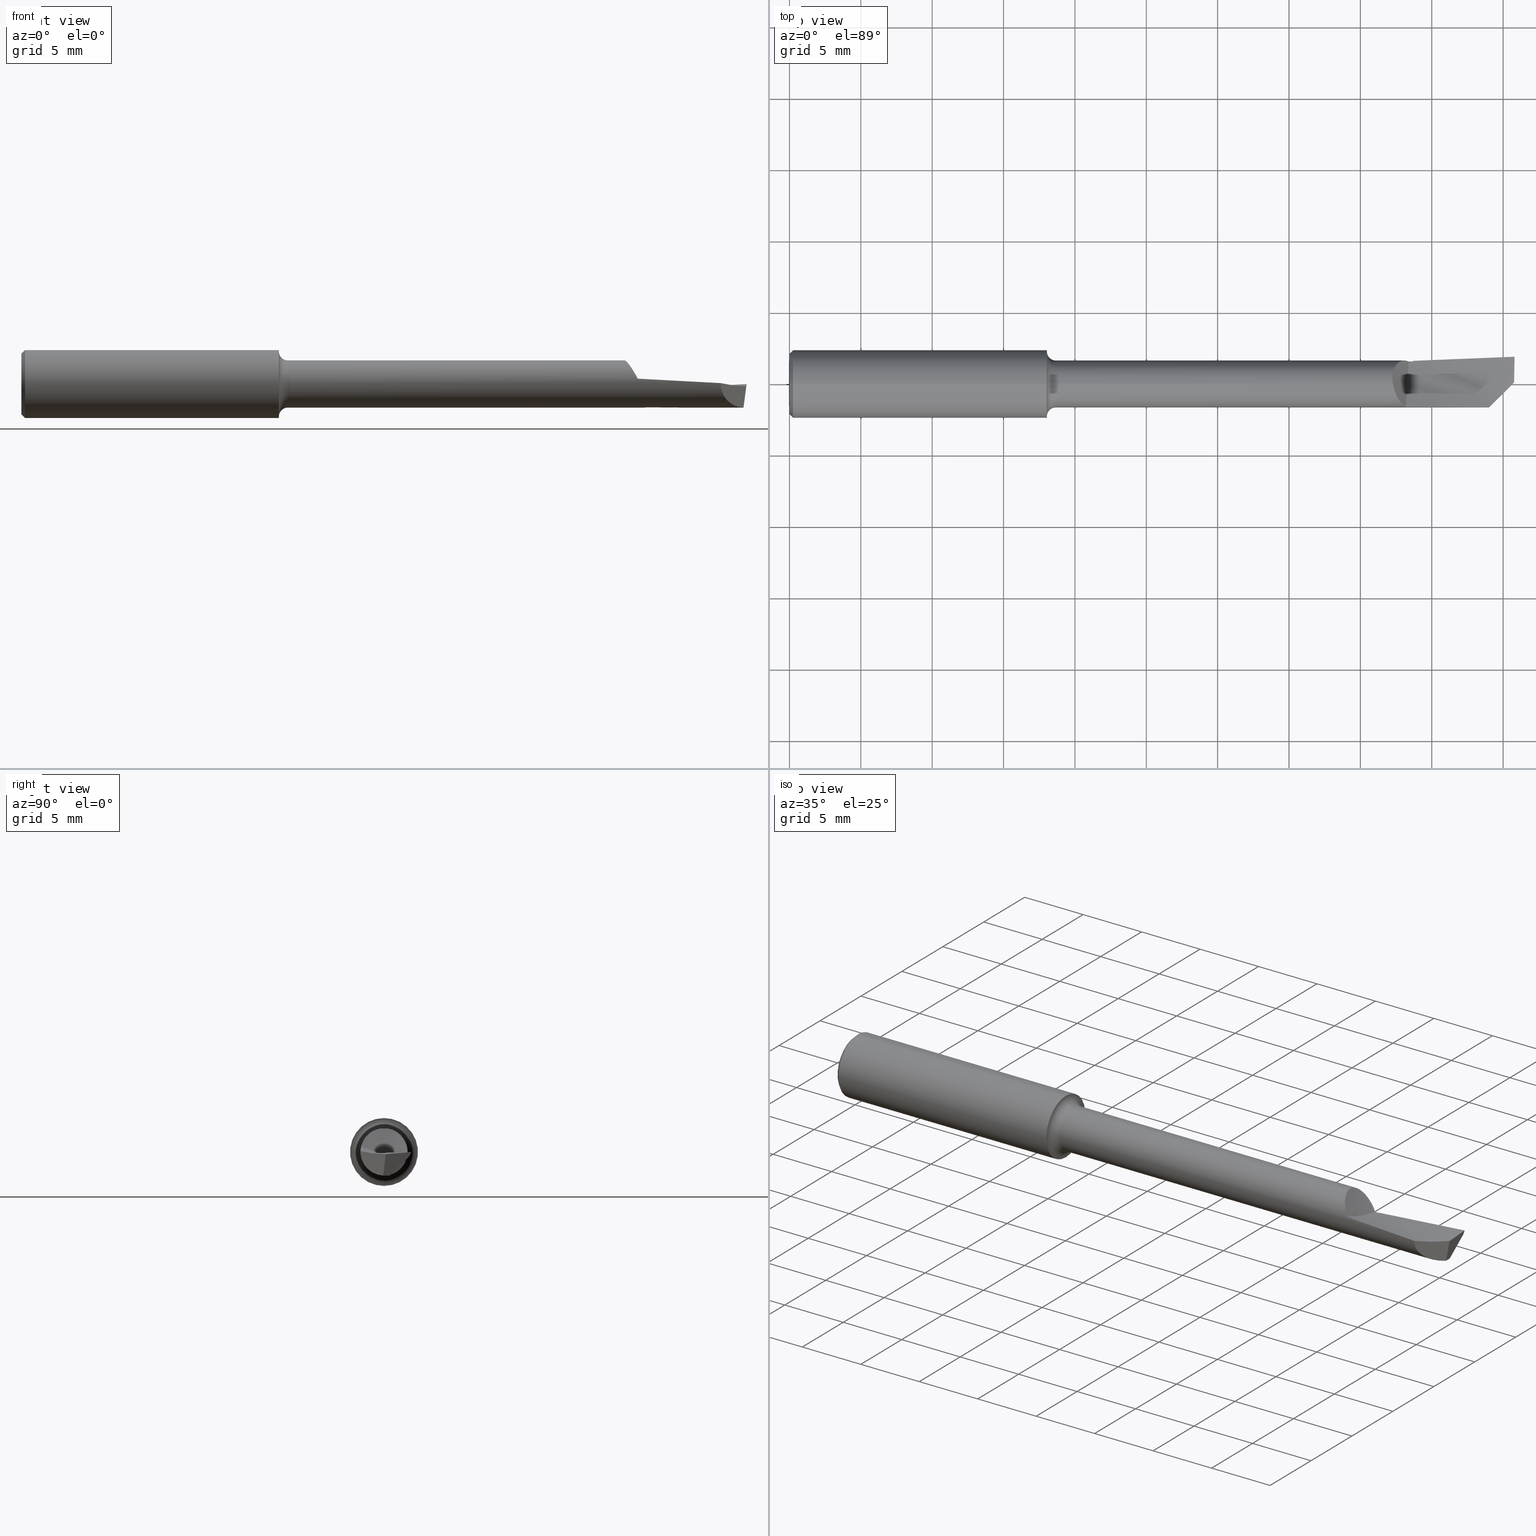
[diagram: canonical four-view strip — front | top / right | iso, engineering-drawing reading convention]
A machine part, canonical four-view strip (front | top / right | iso — engineering-drawing reading convention). The complete STEP part file that produces these views, byte-faithful:
ISO-10303-21;
HEADER;
FILE_DESCRIPTION (( 'STEP AP203' ),
    '1' );
FILE_NAME ('216354-HB1501250.STEP',
    '2024-08-05T18:48:39',
    ( '' ),
    ( '' ),
    'SwSTEP 2.0',
    'SolidWorks 2024',
    '' );
FILE_SCHEMA (( 'CONFIG_CONTROL_DESIGN' ));
ENDSEC;

DATA;
#1 = CARTESIAN_POINT ( 'NONE',  ( 2.000000000000000000, 0.07524999999999999745, 0.000000000000000000 ) ) ;
#2 = DIRECTION ( 'NONE',  ( 0.000000000000000000, 0.000000000000000000, 1.000000000000000000 ) ) ;
#3 = DIRECTION ( 'NONE',  ( 0.1220122463319277817, 0.1220122463319274764, 0.9850005195379716305 ) ) ;
#4 = CARTESIAN_POINT ( 'NONE',  ( 1.251777777777779432, -0.04743788576241883548, 0.01849630583974562481 ) ) ;
#5 = VERTEX_POINT ( 'NONE', #358 ) ;
#6 = CARTESIAN_POINT ( 'NONE',  ( 1.663300000000000001, 0.008278302218628536685, 0.06447068878472642095 ) ) ;
#7 = EDGE_CURVE ( 'NONE', #397, #79, #46, .T. ) ;
#8 = CARTESIAN_POINT ( 'NONE',  ( 1.667261456732745506, -0.01378368978422076473, 0.06362134062580601657 ) ) ;
#9 = DIRECTION ( 'NONE',  ( -1.000000000000000000, -0.000000000000000000, -0.000000000000000000 ) ) ;
#10 = CARTESIAN_POINT ( 'NONE',  ( 0.009999999999999995004, 0.000000000000000000, -0.09360000000000001652 ) ) ;
#11 = TOROIDAL_SURFACE ( 'NONE', #590, 0.08999999999999999667, 0.02500000000000000139 ) ;
#12 =( LENGTH_UNIT ( ) NAMED_UNIT ( * ) SI_UNIT ( $, .METRE. ) );
#13 = PLANE ( 'NONE',  #698 ) ;
#14 = EDGE_LOOP ( 'NONE', ( #28, #680, #507, #502, #491, #319, #748 ) ) ;
#15 = CARTESIAN_POINT ( 'NONE',  ( 1.699636997542416372, -0.06945853298004704690, 0.01732028629663547731 ) ) ;
#16 = CYLINDRICAL_SURFACE ( 'NONE', #236, 0.09360000000000001652 ) ;
#17 = ORIENTED_EDGE ( 'NONE', *, *, #142, .F. ) ;
#18 = AXIS2_PLACEMENT_3D ( 'NONE', #138, #553, #372 ) ;
#19 = AXIS2_PLACEMENT_3D ( 'NONE', #560, #603, #189 ) ;
#20 = CARTESIAN_POINT ( 'NONE',  ( 1.998690112278779241, 0.005006379540724001202, -0.005675423620969897651 ) ) ;
#21 = ORIENTED_EDGE ( 'NONE', *, *, #489, .T. ) ;
#22 = LINE ( 'NONE', #313, #369 ) ;
#23 = EDGE_LOOP ( 'NONE', ( #558, #277, #607, #579, #366 ) ) ;
#24 = CARTESIAN_POINT ( 'NONE',  ( 1.751194580466905792, -0.006177430924799603464, -0.06477662660053580546 ) ) ;
#25 = B_SPLINE_CURVE_WITH_KNOTS ( 'NONE', 3,
 ( #260, #616, #672, #563 ),
 .UNSPECIFIED., .F., .F.,
 ( 4, 4 ),
 ( 8.673970620855088417E-18, 0.001785651175697139208 ),
 .UNSPECIFIED. ) ;
#26 = EDGE_CURVE ( 'NONE', #212, #263, #648, .T. ) ;
#27 = LINE ( 'NONE', #32, #697 ) ;
#28 = ORIENTED_EDGE ( 'NONE', *, *, #712, .F. ) ;
#29 = B_SPLINE_SURFACE_WITH_KNOTS ( 'NONE', 1, 3, ( 
 ( #374, #318, #438, #145 ),
 ( #321, #132, #368, #215 ) ),
 .UNSPECIFIED., .F., .F., .F.,
 ( 2, 2 ),
 ( 4, 4 ),
 ( 0.000000000000000000, 1.000000000000000000 ),
 ( 0.000000000000000000, 1.000000000000000000 ),
 .UNSPECIFIED. ) ;
#30 = CARTESIAN_POINT ( 'NONE',  ( 1.813570384251951273, 8.003460918938271148E-19, -0.06500000000000000222 ) ) ;
#31 = AXIS2_PLACEMENT_3D ( 'NONE', #699, #410, #651 ) ;
#32 = CARTESIAN_POINT ( 'NONE',  ( 1.719999999999999973, 0.05758081542404219766, -0.02571398672436505869 ) ) ;
#33 = ORIENTED_EDGE ( 'NONE', *, *, #383, .F. ) ;
#34 = CARTESIAN_POINT ( 'NONE',  ( 1.683463722967595499, 0.06159209019985895095, 0.02111675725298023387 ) ) ;
#35 = DIRECTION ( 'NONE',  ( -1.000000000000000000, -0.000000000000000000, -0.000000000000000000 ) ) ;
#36 = ORIENTED_EDGE ( 'NONE', *, *, #185, .T. ) ;
#37 = CALENDAR_DATE ( 2024, 5, 8 ) ;
#38 = CARTESIAN_POINT ( 'NONE',  ( 1.699977625303844553, -0.06329835092067141733, 0.01477561405571807193 ) ) ;
#39 = ORIENTED_EDGE ( 'NONE', *, *, #556, .T. ) ;
#40 = APPROVAL_DATE_TIME ( #575, #526 ) ;
#41 = DIRECTION ( 'NONE',  ( 0.000000000000000000, -0.8655013302530163433, -0.5009066253607143970 ) ) ;
#42 = CIRCLE ( 'NONE', #31, 0.09360000000000001652 ) ;
#43 = ORIENTED_EDGE ( 'NONE', *, *, #300, .F. ) ;
#44 = EDGE_CURVE ( 'NONE', #688, #574, #504, .T. ) ;
#45 = DIRECTION ( 'NONE',  ( 0.1218739150664907706, 0.000000000000000000, 0.9925455903012041503 ) ) ;
#46 = CIRCLE ( 'NONE', #417, 0.09360000000000001652 ) ;
#47 = EDGE_LOOP ( 'NONE', ( #21, #107, #343, #424 ) ) ;
#48 = CARTESIAN_POINT ( 'NONE',  ( 1.991497697226062513, 0.01554903691920557843, -0.06500000000000000222 ) ) ;
#49 = ORIENTED_EDGE ( 'NONE', *, *, #732, .T. ) ;
#50 = CARTESIAN_POINT ( 'NONE',  ( 1.675285557495423960, 0.05481803054577297218, 0.03499875016799042227 ) ) ;
#51 = PERSON_AND_ORGANIZATION ( #519, #245 ) ;
#52 = CARTESIAN_POINT ( 'NONE',  ( 1.677202741120177754, -0.03862555393859516684, 0.05228136643228501607 ) ) ;
#53 = ADVANCED_FACE ( 'NONE', ( #539 ), #704, .T. ) ;
#54 = VERTEX_POINT ( 'NONE', #411 ) ;
#55 = CARTESIAN_POINT ( 'NONE',  ( 1.663517204838324437, 0.005571531967642247805, 0.06481825297132121078 ) ) ;
#56 = CARTESIAN_POINT ( 'NONE',  ( 1.812944444444444692, 0.04720366949543100543, -0.02071988357100934888 ) ) ;
#57 = ORIENTED_EDGE ( 'NONE', *, *, #495, .T. ) ;
#58 = CIRCLE ( 'NONE', #72, 0.08999999999999999667 ) ;
#59 = CARTESIAN_POINT ( 'NONE',  ( 1.999999999999999778, 0.04924991155350778166, -0.01291946389357409748 ) ) ;
#60 = DIRECTION ( 'NONE',  ( 0.000000000000000000, -1.000000000000000000, 0.000000000000000000 ) ) ;
#61 = CARTESIAN_POINT ( 'NONE',  ( 1.692152312814585668, 0.06461613229309375039, 0.007092158600818460404 ) ) ;
#62 = EDGE_CURVE ( 'NONE', #399, #348, #172, .T. ) ;
#63 = CARTESIAN_POINT ( 'NONE',  ( 1.812944444444444914, 0.1460343190046418660, -0.007374320327842622154 ) ) ;
#64 = CARTESIAN_POINT ( 'NONE',  ( 1.719999999999999973, -0.06922596991571894343, -0.09910308122617432491 ) ) ;
#65 = CC_DESIGN_DATE_AND_TIME_ASSIGNMENT ( #278, #473, ( #632 ) ) ;
#66 = CARTESIAN_POINT ( 'NONE',  ( 1.906692579083983485, 0.07226879145171034857, -0.006399015445433485320 ) ) ;
#67 = ORIENTED_EDGE ( 'NONE', *, *, #656, .F. ) ;
#68 = B_SPLINE_CURVE_WITH_KNOTS ( 'NONE', 3,
 ( #381, #598, #660, #429 ),
 .UNSPECIFIED., .F., .F.,
 ( 4, 4 ),
 ( 0.000000000000000000, 0.004536655167221706648 ),
 .UNSPECIFIED. ) ;
#69 = CARTESIAN_POINT ( 'NONE',  ( 0.000000000000000000, 0.000000000000000000, 0.06499999999999998834 ) ) ;
#70 = CARTESIAN_POINT ( 'NONE',  ( 1.719999999999999973, 0.06286089002485090171, -0.01653809255275878048 ) ) ;
#71 = ADVANCED_FACE ( 'NONE', ( #478 ), #175, .F. ) ;
#72 = AXIS2_PLACEMENT_3D ( 'NONE', #576, #35, #389 ) ;
#73 = MANIFOLD_SOLID_BREP ( 'Front Angle', #758 ) ;
#74 = AXIS2_PLACEMENT_3D ( 'NONE', #490, #87, #202 ) ;
#75 = LENGTH_MEASURE_WITH_UNIT ( LENGTH_MEASURE( 0.02539999999999999897 ), #12 );
#76 = CYLINDRICAL_SURFACE ( 'NONE', #731, 0.09360000000000001652 ) ;
#77 = ADVANCED_FACE ( 'NONE', ( #587 ), #673, .T. ) ;
#78 = CARTESIAN_POINT ( 'NONE',  ( 1.998690112278779241, 0.005006379540724001202, -0.005675423620969897651 ) ) ;
#79 = VERTEX_POINT ( 'NONE', #754 ) ;
#80 = DIRECTION ( 'NONE',  ( 0.000000000000000000, -0.6009783641724987246, -0.7992652912497498763 ) ) ;
#81 = ORIENTED_EDGE ( 'NONE', *, *, #290, .F. ) ;
#82 = AXIS2_PLACEMENT_3D ( 'NONE', #471, #60, #298 ) ;
#83 = CARTESIAN_POINT ( 'NONE',  ( 0.009999999999999995004, 0.000000000000000000, 0.09360000000000001652 ) ) ;
#84 = ORIENTED_EDGE ( 'NONE', *, *, #44, .T. ) ;
#85 = EDGE_CURVE ( 'NONE', #397, #399, #244, .T. ) ;
#86 = CARTESIAN_POINT ( 'NONE',  ( 1.705057494486220016, 0.01961224475334205977, -0.01235505082219080959 ) ) ;
#87 = DIRECTION ( 'NONE',  ( -1.000000000000000000, -0.000000000000000000, -0.000000000000000000 ) ) ;
#88 = VERTEX_POINT ( 'NONE', #234 ) ;
#89 = CARTESIAN_POINT ( 'NONE',  ( 1.999203643138184550, 0.07269493246612006299, -0.006303965626942225481 ) ) ;
#90 = FACE_OUTER_BOUND ( 'NONE', #662, .T. ) ;
#91 = ORIENTED_EDGE ( 'NONE', *, *, #677, .T. ) ;
#92 = CARTESIAN_POINT ( 'NONE',  ( 1.679691886667123102, 0.05894830204861728484, 0.02738827600253190137 ) ) ;
#93 = CARTESIAN_POINT ( 'NONE',  ( 1.953242078417094296, -0.04044165432096010621, -0.06358710017899862899 ) ) ;
#94 = CIRCLE ( 'NONE', #710, 0.08359999999999997988 ) ;
#95 = DIRECTION ( 'NONE',  ( 0.000000000000000000, 0.000000000000000000, 1.000000000000000000 ) ) ;
#96 = VERTEX_POINT ( 'NONE', #353 ) ;
#97 = CARTESIAN_POINT ( 'NONE',  ( 1.677762388820738693, 0.05732833905527691398, 0.03067025657965057051 ) ) ;
#98 = MECHANICAL_CONTEXT ( 'NONE', #137, 'mechanical' ) ;
#99 = DIRECTION ( 'NONE',  ( 1.000000000000000000, 0.000000000000000000, 0.000000000000000000 ) ) ;
#100 = ORIENTED_EDGE ( 'NONE', *, *, #26, .F. ) ;
#101 = B_SPLINE_CURVE_WITH_KNOTS ( 'NONE', 3,
 ( #20, #434, #315, #557 ),
 .UNSPECIFIED., .F., .F.,
 ( 4, 4 ),
 ( 4.685496789594792856E-05, 0.002568357804652190643 ),
 .UNSPECIFIED. ) ;
#102 = EDGE_CURVE ( 'NONE', #555, #88, #602, .T. ) ;
#103 = CARTESIAN_POINT ( 'NONE',  ( 1.663300000000000001, 0.02346032035286604173, 0.06061858930180492183 ) ) ;
#104 = ORIENTED_EDGE ( 'NONE', *, *, #630, .T. ) ;
#105 = COORDINATED_UNIVERSAL_TIME_OFFSET ( 8, 0, .BEHIND. ) ;
#106 = CARTESIAN_POINT ( 'NONE',  ( 1.663300000000000001, 0.008278302218628536685, 0.06447068878472642095 ) ) ;
#107 = ORIENTED_EDGE ( 'NONE', *, *, #259, .T. ) ;
#108 = AXIS2_PLACEMENT_3D ( 'NONE', #475, #9, #238 ) ;
#109 = PERSON_AND_ORGANIZATION ( #519, #245 ) ;
#110 = ADVANCED_FACE ( 'NONE', ( #339 ), #270, .F. ) ;
#111 = CARTESIAN_POINT ( 'NONE',  ( 0.009999999999999995004, 0.000000000000000000, 0.000000000000000000 ) ) ;
#112 = ORIENTED_EDGE ( 'NONE', *, *, #687, .F. ) ;
#113 = DIRECTION ( 'NONE',  ( -0.7071067811865466846, 0.7071067811865483499, 0.000000000000000000 ) ) ;
#114 = PRODUCT_RELATED_PRODUCT_CATEGORY ( 'detail', '', ( #562 ) ) ;
#115 = CARTESIAN_POINT ( 'NONE',  ( 1.813333405416930111, 0.06842954600882479588, -0.01229426786996220752 ) ) ;
#116 = CARTESIAN_POINT ( 'NONE',  ( 0.000000000000000000, 1.146269404001922775E-17, -0.09360000000000001652 ) ) ;
#117 = DIRECTION ( 'NONE',  ( 0.000000000000000000, 0.000000000000000000, 1.000000000000000000 ) ) ;
#118 = CARTESIAN_POINT ( 'NONE',  ( 1.677652338294585821, -0.03944591485999998648, 0.05166569923872247477 ) ) ;
#119 = CARTESIAN_POINT ( 'NONE',  ( 1.906666396777477956, 0.06735851617723603857, -0.01618938292801345991 ) ) ;
#120 = LINE ( 'NONE', #10, #341 ) ;
#121 = LOCAL_TIME ( 11, 48, 39.00000000000000000, #454 ) ;
#122 = AXIS2_PLACEMENT_3D ( 'NONE', #529, #652, #707 ) ;
#123 = CARTESIAN_POINT ( 'NONE',  ( 1.719999999999999973, 0.06406257587761798877, -0.01709363287207335200 ) ) ;
#124 = CARTESIAN_POINT ( 'NONE',  ( 2.000000000000000000, -0.03239026225835030942, -0.1135999999999999788 ) ) ;
#125 = DIRECTION ( 'NONE',  ( 0.000000000000000000, 0.000000000000000000, 1.000000000000000000 ) ) ;
#126 = EDGE_CURVE ( 'NONE', #717, #149, #130, .T. ) ;
#127 = CARTESIAN_POINT ( 'NONE',  ( 1.438833333333334519, -0.1224787625711141470, 0.07987086857231359693 ) ) ;
#128 = CARTESIAN_POINT ( 'NONE',  ( 0.7350000000000000977, 0.000000000000000000, 0.000000000000000000 ) ) ;
#129 = ORIENTED_EDGE ( 'NONE', *, *, #556, .F. ) ;
#130 = B_SPLINE_CURVE_WITH_KNOTS ( 'NONE', 3,
 ( #518, #572, #750, #284, #580, #623, #50, #289, #97, #391, #332, #676, #92, #567, #274, #34, #508, #736, #242, #588, #61, #412, #543, #303, #653, #310, #713 ),
 .UNSPECIFIED., .F., .F.,
 ( 4, 2, 2, 2, 1, 1, 1, 2, 2, 2, 2, 1, 1, 2, 2, 4 ),
 ( 0.000000000000000000, 0.2499999999998402389, 0.3749999999997589706, 0.4374999999997197797, 0.4687499999997016831, 0.4843749999996926903, 0.4921874999996898037, 0.4960937499996884159, 0.4999999999996870281, 0.6249999999997348787, 0.6874999999997608580, 0.7187499999997738476, 0.7343749999997820632, 0.7421874999997861710, 0.7499999999997902789, 1.000000000000000000 ),
 .UNSPECIFIED. ) ;
#131 = CARTESIAN_POINT ( 'NONE',  ( 1.906666498010979538, 0.07661383584371860012, 0.04345945407281173734 ) ) ;
#132 = CARTESIAN_POINT ( 'NONE',  ( 1.906666396777476180, 0.06735851617723595530, -0.01618938292801359521 ) ) ;
#133 = CONICAL_SURFACE ( 'NONE', #601, 0.09360000000000001652, 0.7853981633974501664 ) ;
#134 = EDGE_CURVE ( 'NONE', #5, #570, #266, .T. ) ;
#135 = DIRECTION ( 'NONE',  ( -1.000000000000000000, -0.000000000000000000, -0.000000000000000000 ) ) ;
#136 = VERTEX_POINT ( 'NONE', #472 ) ;
#137 = APPLICATION_CONTEXT ( 'configuration controlled 3d designs of mechanical parts and assemblies' ) ;
#138 = CARTESIAN_POINT ( 'NONE',  ( 1.719999999999999973, 0.000000000000000000, 0.000000000000000000 ) ) ;
#139 = ORIENTED_EDGE ( 'NONE', *, *, #102, .T. ) ;
#140 = DIRECTION ( 'NONE',  ( 0.000000000000000000, 0.000000000000000000, 1.000000000000000000 ) ) ;
#141 = ORIENTED_EDGE ( 'NONE', *, *, #7, .T. ) ;
#142 = EDGE_CURVE ( 'NONE', #96, #193, #624, .T. ) ;
#143 = VECTOR ( 'NONE', #161, 39.37007874015748143 ) ;
#144 = CARTESIAN_POINT ( 'NONE',  ( 1.998726022799542035, 0.07115711936974120078, -0.01008442737369629957 ) ) ;
#145 = CARTESIAN_POINT ( 'NONE',  ( 1.719999999999999973, 0.06406257587761798877, -0.01709363287207335200 ) ) ;
#146 = ORIENTED_EDGE ( 'NONE', *, *, #285, .F. ) ;
#147 = CARTESIAN_POINT ( 'NONE',  ( 1.664282264028300151, 9.629122535582421507E-07, 0.06500714507469043668 ) ) ;
#148 = CARTESIAN_POINT ( 'NONE',  ( 1.991350124252631471, -0.001558269957249901238, -0.06498599036864870226 ) ) ;
#149 = VERTEX_POINT ( 'NONE', #306 ) ;
#150 =( BOUNDED_CURVE ( )  B_SPLINE_CURVE ( 3, ( #396, #393, #679, #738 ),
 .UNSPECIFIED., .F., .T. ) 
 B_SPLINE_CURVE_WITH_KNOTS ( ( 4, 4 ),
 ( 0.003652322249826464584, 0.003685822286269421419 ),
 .UNSPECIFIED. ) 
 CURVE ( )  GEOMETRIC_REPRESENTATION_ITEM ( )  RATIONAL_B_SPLINE_CURVE ( ( 0.9785329928491668383, 0.9785892212860342054, 0.9786460211262746345, 0.9787033923698881255 ) ) 
 REPRESENTATION_ITEM ( '' )  );
#151 = CARTESIAN_POINT ( 'NONE',  ( 2.000000000000000000, 0.07524999999999999745, 0.000000000000000000 ) ) ;
#152 = CARTESIAN_POINT ( 'NONE',  ( 1.991346768599194572, -0.002336964138860349403, -0.06495797563512641093 ) ) ;
#153 = CARTESIAN_POINT ( 'NONE',  ( 1.719999999999999973, 0.06286089002485090171, -0.01653809255275878395 ) ) ;
#154 = ORIENTED_EDGE ( 'NONE', *, *, #433, .T. ) ;
#155 = CALENDAR_DATE ( 2024, 5, 8 ) ;
#156 = APPROVAL_PERSON_ORGANIZATION ( #336, #526, #295 ) ;
#157 = EDGE_CURVE ( 'NONE', #742, #288, #597, .T. ) ;
#158 = AXIS2_PLACEMENT_3D ( 'NONE', #483, #187, #423 ) ;
#159 = CARTESIAN_POINT ( 'NONE',  ( 0.000000000000000000, 1.085037064044554943E-17, 0.08359999999999997988 ) ) ;
#160 = VERTEX_POINT ( 'NONE', #467 ) ;
#161 = DIRECTION ( 'NONE',  ( -1.000000000000000000, -0.000000000000000000, -0.000000000000000000 ) ) ;
#162 = ORIENTED_EDGE ( 'NONE', *, *, #757, .T. ) ;
#163 = DIRECTION ( 'NONE',  ( 0.000000000000000000, 0.000000000000000000, 1.000000000000000000 ) ) ;
#164 = CARTESIAN_POINT ( 'NONE',  ( 0.000000000000000000, 7.960204194457793628E-18, -0.06499999999999998834 ) ) ;
#165 = ORIENTED_EDGE ( 'NONE', *, *, #344, .T. ) ;
#166 = EDGE_CURVE ( 'NONE', #437, #399, #120, .T. ) ;
#167 = APPLICATION_PROTOCOL_DEFINITION ( 'international standard', 'config_control_design', 1994, #137 ) ;
#168 = CARTESIAN_POINT ( 'NONE',  ( 1.670784438365078506, -0.02456679488876298625, 0.06029855173159224396 ) ) ;
#169 = CIRCLE ( 'NONE', #608, 0.06499999999999998834 ) ;
#170 = EDGE_LOOP ( 'NONE', ( #33, #283, #165, #634 ) ) ;
#171 = PLANE ( 'NONE',  #158 ) ;
#172 = CIRCLE ( 'NONE', #108, 0.09360000000000001652 ) ;
#173 = PERSON_AND_ORGANIZATION ( #519, #245 ) ;
#174 = CARTESIAN_POINT ( 'NONE',  ( 1.993876612660086645, 0.03402300587759423539, -0.04693900690774778506 ) ) ;
#175 = PLANE ( 'NONE',  #122 ) ;
#176 = DIRECTION ( 'NONE',  ( -1.000000000000000000, -0.000000000000000000, -0.000000000000000000 ) ) ;
#177 = UNCERTAINTY_MEASURE_WITH_UNIT (LENGTH_MEASURE( 1.000000000000000082E-05 ), #547, 'distance_accuracy_value', 'NONE');
#178 = CARTESIAN_POINT ( 'NONE',  ( 1.998726022799542035, 0.07115711936974120078, -0.01008442737369629957 ) ) ;
#179 = CARTESIAN_POINT ( 'NONE',  ( 1.906666187157394221, -0.04524618104179124745, -0.1107847082594578814 ) ) ;
#180 = CARTESIAN_POINT ( 'NONE',  ( 1.665945290486797070, -0.008512530675338348535, 0.06446474302496317532 ) ) ;
#181 = CARTESIAN_POINT ( 'NONE',  ( 2.000000000000000000, 0.07120973774164850167, -0.01000000000000000021 ) ) ;
#182 = AXIS2_PLACEMENT_3D ( 'NONE', #681, #619, #505 ) ;
#183 = CARTESIAN_POINT ( 'NONE',  ( 1.719999999999999973, 0.06417449704456136550, -0.01667418088645498953 ) ) ;
#184 = AXIS2_PLACEMENT_3D ( 'NONE', #542, #596, #2 ) ;
#185 = EDGE_CURVE ( 'NONE', #136, #517, #309, .T. ) ;
#186 = CARTESIAN_POINT ( 'NONE',  ( 1.676749584679821936, -0.03777747030632286340, 0.05289742366453282357 ) ) ;
#187 = DIRECTION ( 'NONE',  ( -1.000000000000000000, 0.000000000000000000, -0.000000000000000000 ) ) ;
#188 = ORIENTED_EDGE ( 'NONE', *, *, #134, .T. ) ;
#189 = DIRECTION ( 'NONE',  ( 0.000000000000000000, 0.000000000000000000, -1.000000000000000000 ) ) ;
#190 = ADVANCED_FACE ( 'NONE', ( #540 ), #171, .T. ) ;
#191 = CARTESIAN_POINT ( 'NONE',  ( 1.664419148966658435, -0.0008299192885627541295, 0.06499604847790314832 ) ) ;
#192 = FACE_BOUND ( 'NONE', #428, .T. ) ;
#193 = VERTEX_POINT ( 'NONE', #183 ) ;
#194 = CC_DESIGN_APPROVAL ( #499, ( #453 ) ) ;
#195 = CIRCLE ( 'NONE', #74, 0.08999999999999999667 ) ;
#196 = CARTESIAN_POINT ( 'NONE',  ( 1.719999999999999973, 0.06406257587761798877, -0.01709363287207335200 ) ) ;
#197 = ORIENTED_EDGE ( 'NONE', *, *, #484, .F. ) ;
#198 = ADVANCED_FACE ( 'NONE', ( #479 ), #207, .F. ) ;
#199 = DIRECTION ( 'NONE',  ( -1.000000000000000000, -0.000000000000000000, -0.000000000000000000 ) ) ;
#200 = ORIENTED_EDGE ( 'NONE', *, *, #380, .F. ) ;
#201 = B_SPLINE_CURVE_WITH_KNOTS ( 'NONE', 3,
 ( #657, #24, #363, #30 ),
 .UNSPECIFIED., .F., .F.,
 ( 4, 4 ),
 ( 0.000000000000000000, 0.002388144790512181353 ),
 .UNSPECIFIED. ) ;
#202 = DIRECTION ( 'NONE',  ( 0.000000000000000000, 0.000000000000000000, 1.000000000000000000 ) ) ;
#203 = VERTEX_POINT ( 'NONE', #361 ) ;
#204 = CC_DESIGN_APPROVAL ( #526, ( #632 ) ) ;
#205 = CARTESIAN_POINT ( 'NONE',  ( 1.998832147162534323, 0.07149918682433777095, -0.009244458101035281372 ) ) ;
#206 = EDGE_CURVE ( 'NONE', #160, #263, #655, .T. ) ;
#207 = TOROIDAL_SURFACE ( 'NONE', #720, 0.08999999999999999667, 0.02500000000000000139 ) ;
#208 = DIRECTION ( 'NONE',  ( 1.000000000000000000, 0.000000000000000000, 0.000000000000000000 ) ) ;
#209 = ORIENTED_EDGE ( 'NONE', *, *, #44, .F. ) ;
#210 = CARTESIAN_POINT ( 'NONE',  ( 2.000000000000000000, 0.07524999999999999745, 0.000000000000000000 ) ) ;
#211 = DIRECTION ( 'NONE',  ( 0.000000000000000000, 0.000000000000000000, 1.000000000000000000 ) ) ;
#212 = VERTEX_POINT ( 'NONE', #365 ) ;
#213 = EDGE_CURVE ( 'NONE', #149, #555, #751, .T. ) ;
#214 = CARTESIAN_POINT ( 'NONE',  ( 1.719999999999999973, 0.07695294528832100078, 0.03121618369201236906 ) ) ;
#215 = CARTESIAN_POINT ( 'NONE',  ( 1.719999999999999973, 0.05758081542404219766, -0.02571398672436506563 ) ) ;
#216 = EDGE_LOOP ( 'NONE', ( #514, #408, #497, #394 ) ) ;
#217 = DATE_TIME_ROLE ( 'classification_date' ) ;
#218 = AXIS2_PLACEMENT_3D ( 'NONE', #111, #356, #535 ) ;
#219 = DIRECTION ( 'NONE',  ( -1.000000000000000000, -0.000000000000000000, -0.000000000000000000 ) ) ;
#220 = ORIENTED_EDGE ( 'NONE', *, *, #612, .T. ) ;
#221 = PERSON_AND_ORGANIZATION_ROLE ( 'creator' ) ;
#222 = DIRECTION ( 'NONE',  ( -1.000000000000000000, -0.000000000000000000, -0.000000000000000000 ) ) ;
#223 = ADVANCED_FACE ( 'NONE', ( #705 ), #13, .F. ) ;
#224 = ORIENTED_EDGE ( 'NONE', *, *, #594, .T. ) ;
#225 = APPLICATION_PROTOCOL_DEFINITION ( 'international standard', 'config_control_design', 1994, #638 ) ;
#226 = CC_DESIGN_PERSON_AND_ORGANIZATION_ASSIGNMENT ( #512, #585, ( #632 ) ) ;
#227 = APPROVAL ( #685, 'UNSPECIFIED' ) ;
#228 = CARTESIAN_POINT ( 'NONE',  ( 1.694922189286493852, -0.06109974571064823862, 0.02419769389576081203 ) ) ;
#229 = VERTEX_POINT ( 'NONE', #584 ) ;
#230 = CARTESIAN_POINT ( 'NONE',  ( 1.719999999999999973, 0.000000000000000000, 0.000000000000000000 ) ) ;
#231 = CALENDAR_DATE ( 2024, 5, 8 ) ;
#232 = VECTOR ( 'NONE', #385, 39.37007874015748143 ) ;
#233 = FACE_OUTER_BOUND ( 'NONE', #14, .T. ) ;
#234 = CARTESIAN_POINT ( 'NONE',  ( 1.719999999999999973, 0.06182337109529804919, -0.02007164134825715346 ) ) ;
#235 = CARTESIAN_POINT ( 'NONE',  ( 1.699999999999999956, 0.000000000000000000, -0.06500000000000000222 ) ) ;
#236 = AXIS2_PLACEMENT_3D ( 'NONE', #663, #199, #436 ) ;
#237 = CARTESIAN_POINT ( 'NONE',  ( 1.625888888888889383, -0.05083178321125149390, 0.002931919318473395937 ) ) ;
#238 = DIRECTION ( 'NONE',  ( 0.000000000000000000, 0.000000000000000000, 1.000000000000000000 ) ) ;
#239 = DIRECTION ( 'NONE',  ( 0.000000000000000000, -0.2578073882140604622, -0.9661963312817145599 ) ) ;
#240 = CARTESIAN_POINT ( 'NONE',  ( 1.675630609971750618, -0.03564624879618151498, 0.05440640226064081403 ) ) ;
#241 = DIRECTION ( 'NONE',  ( -0.008726535498367391300, -0.9999619230641714207, 0.000000000000000000 ) ) ;
#242 = CARTESIAN_POINT ( 'NONE',  ( 1.689967308987869732, 0.06414045681320691694, 0.01058732485183084063 ) ) ;
#243 = CARTESIAN_POINT ( 'NONE',  ( 1.677277705332639535, -0.03876205112631275068, 0.05217839171269312432 ) ) ;
#244 = LINE ( 'NONE', #116, #281 ) ;
#245 = ORGANIZATION ( 'UNSPECIFIED', 'UNSPECIFIED', '' ) ;
#246 = CARTESIAN_POINT ( 'NONE',  ( 1.663845510409285966, 0.002805387472417639628, 0.06499993362033289201 ) ) ;
#247 = CARTESIAN_POINT ( 'NONE',  ( 1.707578098285200463, 0.06268507833287290110, -0.01719246795552008961 ) ) ;
#248 = ADVANCED_FACE ( 'NONE', ( #646 ), #11, .F. ) ;
#249 = DIRECTION ( 'NONE',  ( -1.000000000000000000, -0.000000000000000000, -0.000000000000000000 ) ) ;
#250 = CARTESIAN_POINT ( 'NONE',  ( 1.998938281663325212, 0.07184100587147818073, -0.008404388905487383474 ) ) ;
#251 = CARTESIAN_POINT ( 'NONE',  ( 1.702434719412400765, -0.02450862392445942936, -0.001662932547336496650 ) ) ;
#252 = CARTESIAN_POINT ( 'NONE',  ( 1.663300000000000001, 0.07866112618797450884, 0.05155102954602461263 ) ) ;
#253 = ORIENTED_EDGE ( 'NONE', *, *, #383, .T. ) ;
#254 = DIRECTION ( 'NONE',  ( 0.000000000000000000, -0.6009783641724987246, -0.7992652912497498763 ) ) ;
#255 = EDGE_LOOP ( 'NONE', ( #371, #81, #84, #331 ) ) ;
#256 =( BOUNDED_SURFACE ( )  B_SPLINE_SURFACE ( 3, 2, ( 
 ( #654, #477, #582, #127, #470 ),
 ( #591, #407, #237, #538, #4 ),
 ( #59, #56, #644, #347, #711 ),
 ( #297, #63, #287, #304, #301 ) ),
 .UNSPECIFIED., .F., .F., .F. ) 
 B_SPLINE_SURFACE_WITH_KNOTS ( ( 4, 4 ),
 ( 3, 2, 3 ),
 ( 0.000000000000000000, 1.000000000000000000 ),
 ( 0.000000000000000000, 0.5000000000000000000, 1.000000000000000000 ),
 .UNSPECIFIED. ) 
 GEOMETRIC_REPRESENTATION_ITEM ( )  RATIONAL_B_SPLINE_SURFACE ( (
 ( 1.000000000000000000, 0.9876883405951377704, 1.000000000000000000, 0.9876883405951377704, 1.000000000000000000),
 ( 0.9719137589650621578, 0.9599478877937849264, 0.9719137589650621578, 0.9599478877937849264, 0.9719137589650621578),
 ( 0.9719137589650621578, 0.9599478877937849264, 0.9719137589650621578, 0.9599478877937849264, 0.9719137589650621578),
 ( 1.000000000000000000, 0.9876883405951377704, 1.000000000000000000, 0.9876883405951377704, 1.000000000000000000) ) ) 
 REPRESENTATION_ITEM ( '' )  SURFACE ( )  );
#257 = FACE_OUTER_BOUND ( 'NONE', #452, .T. ) ;
#258 = ORIENTED_EDGE ( 'NONE', *, *, #712, .T. ) ;
#259 = EDGE_CURVE ( 'NONE', #193, #229, #354, .T. ) ;
#260 = CARTESIAN_POINT ( 'NONE',  ( 2.000000000000000000, 0.07524999999999999745, 0.000000000000000000 ) ) ;
#261 = PRODUCT_DEFINITION_SHAPE ( 'NONE', 'NONE',  #632 ) ;
#262 = PLANE ( 'NONE',  #480 ) ;
#263 = VERTEX_POINT ( 'NONE', #476 ) ;
#264 = CARTESIAN_POINT ( 'NONE',  ( 1.719999999999999973, 0.06406257587761798877, -0.01709363287207335200 ) ) ;
#265 = B_SPLINE_CURVE_WITH_KNOTS ( 'NONE', 3,
 ( #359, #228, #647, #474, #753, #541, #118, #243, #52, #186, #240, #595, #706, #168, #465, #8, #180, #422, #521, #694, #402, #191, #728, #147 ),
 .UNSPECIFIED., .F., .F.,
 ( 4, 2, 2, 2, 2, 1, 2, 2, 2, 2, 1, 2, 4 ),
 ( 0.000000000000000000, 0.2298010575319051063, 0.4596021150638102126, 0.4883272472552957488, 0.5026898133510385724, 0.5170523794467812850, 0.5745026438297522464, 0.6894031725956940582, 0.8043037013616360920, 0.8617539657446070533, 0.8904790979360924785, 0.9048416640318344140, 0.9192042301275763494 ),
 .UNSPECIFIED. ) ;
#266 = CIRCLE ( 'NONE', #388, 0.02500000000000000486 ) ;
#267 = CARTESIAN_POINT ( 'NONE',  ( 0.009999999999999995004, 1.146269404001922775E-17, -0.09360000000000001652 ) ) ;
#268 = ORIENTED_EDGE ( 'NONE', *, *, #732, .F. ) ;
#269 = ADVANCED_FACE ( 'NONE', ( #431 ), #76, .T. ) ;
#270 = PLANE ( 'NONE',  #671 ) ;
#271 = DIRECTION ( 'NONE',  ( -1.000000000000000000, -0.000000000000000000, -0.000000000000000000 ) ) ;
#272 = DIRECTION ( 'NONE',  ( 1.000000000000000000, 0.000000000000000000, 0.000000000000000000 ) ) ;
#273 = ORIENTED_EDGE ( 'NONE', *, *, #468, .F. ) ;
#274 = CARTESIAN_POINT ( 'NONE',  ( 1.681505128274113359, 0.06034990532914726730, 0.02433799703283779162 ) ) ;
#275 = APPROVAL_STATUS ( 'not_yet_approved' ) ;
#276 = CARTESIAN_POINT ( 'NONE',  ( 1.991346768599194572, -0.002336964138860349403, -0.06495797563512641093 ) ) ;
#277 = ORIENTED_EDGE ( 'NONE', *, *, #693, .F. ) ;
#278 = DATE_AND_TIME ( #286, #441 ) ;
#279 = ADVANCED_FACE ( 'NONE', ( #669 ), #324, .T. ) ;
#280 = VECTOR ( 'NONE', #271, 39.37007874015748143 ) ;
#281 = VECTOR ( 'NONE', #645, 39.37007874015748143 ) ;
#282 = CARTESIAN_POINT ( 'NONE',  ( 0.009999999999999995004, 0.000000000000000000, 0.000000000000000000 ) ) ;
#283 = ORIENTED_EDGE ( 'NONE', *, *, #406, .T. ) ;
#284 = CARTESIAN_POINT ( 'NONE',  ( 1.669748380653416353, 0.04684333567167949658, 0.04525638695301841680 ) ) ;
#285 = EDGE_CURVE ( 'NONE', #574, #570, #442, .T. ) ;
#286 = CALENDAR_DATE ( 2024, 5, 8 ) ;
#287 = CARTESIAN_POINT ( 'NONE',  ( 1.625888888888889827, 0.1413212096967318421, -0.02975740103164592476 ) ) ;
#288 = VERTEX_POINT ( 'NONE', #78 ) ;
#289 = CARTESIAN_POINT ( 'NONE',  ( 1.676920095461903015, 0.05651324435725622874, 0.03213231175587470678 ) ) ;
#290 = EDGE_CURVE ( 'NONE', #688, #5, #195, .T. ) ;
#291 = COORDINATED_UNIVERSAL_TIME_OFFSET ( 8, 0, .BEHIND. ) ;
#292 = CARTESIAN_POINT ( 'NONE',  ( 1.995071253894708185, 0.04321459812773233156, -0.03786306949272103678 ) ) ;
#293 = ORIENTED_EDGE ( 'NONE', *, *, #85, .F. ) ;
#294 = CARTESIAN_POINT ( 'NONE',  ( 0.7350000000000000977, 0.000000000000000000, 0.000000000000000000 ) ) ;
#295 = APPROVAL_ROLE ( '' ) ;
#296 = AXIS2_PLACEMENT_3D ( 'NONE', #513, #219, #95 ) ;
#297 = CARTESIAN_POINT ( 'NONE',  ( 2.000000000000000000, 0.1435999999999998389, 0.01536968530276076016 ) ) ;
#298 = DIRECTION ( 'NONE',  ( 0.000000000000000000, 0.000000000000000000, -1.000000000000000000 ) ) ;
#299 = CARTESIAN_POINT ( 'NONE',  ( 1.713786355346465617, 0.06277468955886604529, -0.01686573844028011263 ) ) ;
#300 = EDGE_CURVE ( 'NONE', #229, #88, #22, .T. ) ;
#301 = CARTESIAN_POINT ( 'NONE',  ( 1.251777777777779654, 0.1252089147455814899, -0.07197162562107072004 ) ) ;
#302 = DIRECTION ( 'NONE',  ( 0.000000000000000000, 0.000000000000000000, -1.000000000000000000 ) ) ;
#303 = CARTESIAN_POINT ( 'NONE',  ( 1.693236561504517956, 0.06477844946102732926, 0.005367273020709427758 ) ) ;
#304 = CARTESIAN_POINT ( 'NONE',  ( 1.438833333333334519, 0.1366081003888217904, -0.05214048173544921089 ) ) ;
#305 = DIRECTION ( 'NONE',  ( 1.000000000000000000, 0.000000000000000000, 0.000000000000000000 ) ) ;
#306 = CARTESIAN_POINT ( 'NONE',  ( 1.707578098285200463, 0.06268507833287290110, -0.01719246795552008961 ) ) ;
#307 = EDGE_LOOP ( 'NONE', ( #197, #390, #641, #523, #129, #439, #57, #445, #727, #335 ) ) ;
#308 = ADVANCED_FACE ( 'NONE', ( #192, #257 ), #488, .T. ) ;
#309 = B_SPLINE_CURVE_WITH_KNOTS ( 'NONE', 3,
 ( #599, #246, #55, #6 ),
 .UNSPECIFIED., .F., .F.,
 ( 4, 4 ),
 ( 0.9192042301275763494, 1.000000000000000000 ),
 .UNSPECIFIED. ) ;
#310 = CARTESIAN_POINT ( 'NONE',  ( 1.702833695811477366, 0.06467196128500690699, -0.009949618016757583519 ) ) ;
#311 = CARTESIAN_POINT ( 'NONE',  ( 0.000000000000000000, 0.000000000000000000, 0.09360000000000001652 ) ) ;
#312 = CARTESIAN_POINT ( 'NONE',  ( 1.663299999999997336, -0.003908826770365656476, 0.06580794469020335991 ) ) ;
#313 = CARTESIAN_POINT ( 'NONE',  ( 1.719999999999999973, 0.06406257587761798877, -0.01709363287207335200 ) ) ;
#314 = ORIENTED_EDGE ( 'NONE', *, *, #7, .F. ) ;
#315 = CARTESIAN_POINT ( 'NONE',  ( 1.951875625226384914, -0.04180810751166970374, -0.003282733520795549399 ) ) ;
#316 = ORIENTED_EDGE ( 'NONE', *, *, #126, .F. ) ;
#317 = EDGE_CURVE ( 'NONE', #511, #54, #498, .T. ) ;
#318 = CARTESIAN_POINT ( 'NONE',  ( 1.906666409661871064, 0.07226795532845080305, -0.006540552118408825104 ) ) ;
#319 = ORIENTED_EDGE ( 'NONE', *, *, #495, .F. ) ;
#320 = CARTESIAN_POINT ( 'NONE',  ( 1.999044426205943026, 0.07218257635704131148, -0.007564219968669527033 ) ) ;
#321 = CARTESIAN_POINT ( 'NONE',  ( 2.000000000000000000, 0.07120973774164850167, -0.01000000000000000194 ) ) ;
#322 = ORIENTED_EDGE ( 'NONE', *, *, #677, .F. ) ;
#323 = CARTESIAN_POINT ( 'NONE',  ( 1.999362882770606253, 0.07320672938902701710, -0.005043486671682971198 ) ) ;
#324 = B_SPLINE_SURFACE_WITH_KNOTS ( 'NONE', 1, 3, ( 
 ( #613, #312, #606, #252 ),
 ( #15, #251, #486, #427 ) ),
 .UNSPECIFIED., .F., .F., .F.,
 ( 2, 2 ),
 ( 4, 4 ),
 ( 0.000000000000000000, 1.000000000000000000 ),
 ( 0.01165261228857946557, 0.01484395353378992373 ),
 .UNSPECIFIED. ) ;
#325 = ADVANCED_FACE ( 'NONE', ( #370 ), #16, .T. ) ;
#326 = CARTESIAN_POINT ( 'NONE',  ( 0.7350000000000000977, 7.960204194457793628E-18, -0.06499999999999998834 ) ) ;
#327 = ORIENTED_EDGE ( 'NONE', *, *, #612, .F. ) ;
#328 = CARTESIAN_POINT ( 'NONE',  ( 1.991346768599194572, -0.002336964138860349403, -0.06495797563512641093 ) ) ;
#329 = VECTOR ( 'NONE', #3, 39.37007874015748143 ) ;
#330 = PLANE ( 'NONE',  #650 ) ;
#331 = ORIENTED_EDGE ( 'NONE', *, *, #285, .T. ) ;
#332 = CARTESIAN_POINT ( 'NONE',  ( 1.679313039348972580, 0.05864799379669154156, 0.02802770721881894106 ) ) ;
#333 = CALENDAR_DATE ( 2024, 5, 8 ) ;
#334 = LINE ( 'NONE', #164, #143 ) ;
#335 = ORIENTED_EDGE ( 'NONE', *, *, #433, .F. ) ;
#336 = PERSON_AND_ORGANIZATION ( #519, #245 ) ;
#337 = CARTESIAN_POINT ( 'NONE',  ( 1.998726022799542035, 0.07115711936974120078, -0.01008442737369629957 ) ) ;
#338 = ORIENTED_EDGE ( 'NONE', *, *, #362, .T. ) ;
#339 = FACE_OUTER_BOUND ( 'NONE', #466, .T. ) ;
#340 = B_SPLINE_CURVE_WITH_KNOTS ( 'NONE', 3,
 ( #247, #86, #500, #487 ),
 .UNSPECIFIED., .F., .F.,
 ( 4, 4 ),
 ( 0.000000000000000000, 1.000000000000000000 ),
 .UNSPECIFIED. ) ;
#341 = VECTOR ( 'NONE', #531, 39.37007874015748143 ) ;
#342 = CARTESIAN_POINT ( 'NONE',  ( 1.663300000000000001, 0.008278302218628536685, 0.06447068878472642095 ) ) ;
#343 = ORIENTED_EDGE ( 'NONE', *, *, #300, .T. ) ;
#344 = EDGE_CURVE ( 'NONE', #348, #399, #568, .T. ) ;
#345 = DIRECTION ( 'NONE',  ( -0.9925083585251990304, 0.008661489226065943389, 0.1218693434051474900 ) ) ;
#346 = PERSON_AND_ORGANIZATION_ROLE ( 'design_supplier' ) ;
#347 = CARTESIAN_POINT ( 'NONE',  ( 1.438833333333334519, 0.03849056132176025685, -0.03429251635803180764 ) ) ;
#348 = VERTEX_POINT ( 'NONE', #83 ) ;
#349 = DIRECTION ( 'NONE',  ( -0.7071067811865483499, -0.7071067811865466846, 0.000000000000000000 ) ) ;
#350 = PERSON_AND_ORGANIZATION ( #519, #245 ) ;
#351 = CARTESIAN_POINT ( 'NONE',  ( 1.996285930696583222, 0.05256034441119986078, -0.02863491771475288120 ) ) ;
#352 = EDGE_CURVE ( 'NONE', #88, #54, #659, .T. ) ;
#353 = CARTESIAN_POINT ( 'NONE',  ( 2.000000000000000000, 0.07524999999999999745, 0.000000000000000000 ) ) ;
#354 = LINE ( 'NONE', #537, #640 ) ;
#355 = LOCAL_TIME ( 11, 48, 39.00000000000000000, #291 ) ;
#356 = DIRECTION ( 'NONE',  ( 1.000000000000000000, 0.000000000000000000, 0.000000000000000000 ) ) ;
#357 = CC_DESIGN_APPROVAL ( #227, ( #621 ) ) ;
#358 = CARTESIAN_POINT ( 'NONE',  ( 0.7100000000000000755, 1.102182119232618065E-17, -0.08999999999999999667 ) ) ;
#359 = CARTESIAN_POINT ( 'NONE',  ( 1.699977625303844553, -0.06329835092067141733, 0.01477561405571807193 ) ) ;
#360 = CARTESIAN_POINT ( 'NONE',  ( 1.813333907673392531, -0.05773088465805257391, -0.1058888551097066227 ) ) ;
#361 = CARTESIAN_POINT ( 'NONE',  ( 1.928729976218956255, -0.06495375651909796044, 0.002451431022431828106 ) ) ;
#362 = EDGE_CURVE ( 'NONE', #288, #203, #101, .T. ) ;
#363 = CARTESIAN_POINT ( 'NONE',  ( 1.782384157267214331, -0.003113718387558165809, -0.06500000000000005773 ) ) ;
#364 = CC_DESIGN_PERSON_AND_ORGANIZATION_ASSIGNMENT ( #51, #459, ( #621 ) ) ;
#365 = CARTESIAN_POINT ( 'NONE',  ( 1.991497697226062513, 0.01554903691920557843, -0.06500000000000000222 ) ) ;
#366 = ORIENTED_EDGE ( 'NONE', *, *, #317, .F. ) ;
#367 = LINE ( 'NONE', #69, #232 ) ;
#368 = CARTESIAN_POINT ( 'NONE',  ( 1.813333428900829603, 0.06269704613745986921, -0.02147799883675894847 ) ) ;
#369 = VECTOR ( 'NONE', #80, 39.37007874015748854 ) ;
#370 = FACE_OUTER_BOUND ( 'NONE', #664, .T. ) ;
#371 = ORIENTED_EDGE ( 'NONE', *, *, #134, .F. ) ;
#372 = DIRECTION ( 'NONE',  ( 0.000000000000000000, 0.000000000000000000, -1.000000000000000000 ) ) ;
#373 = EDGE_LOOP ( 'NONE', ( #67, #112, #316, #714, #464 ) ) ;
#374 = CARTESIAN_POINT ( 'NONE',  ( 2.000000000000000000, 0.07524999999999999745, 0.000000000000000000 ) ) ;
#375 = ORIENTED_EDGE ( 'NONE', *, *, #344, .F. ) ;
#376 = B_SPLINE_CURVE_WITH_KNOTS ( 'NONE', 3,
 ( #144, #205, #250, #320, #89, #323, #377, #611, #443, #426 ),
 .UNSPECIFIED., .F., .F.,
 ( 4, 3, 3, 4 ),
 ( 4.137406975854509673E-18, 6.958111125588059000E-05, 0.0001739528613222278463, 0.0002783246923750379862 ),
 .UNSPECIFIED. ) ;
#377 = CARTESIAN_POINT ( 'NONE',  ( 1.999522145020095953, 0.07371796659283560982, -0.003782783741887547121 ) ) ;
#378 = CARTESIAN_POINT ( 'NONE',  ( 0.7350000000000000977, 0.000000000000000000, 0.000000000000000000 ) ) ;
#379 = ORIENTED_EDGE ( 'NONE', *, *, #458, .T. ) ;
#380 = EDGE_CURVE ( 'NONE', #670, #583, #552, .T. ) ;
#381 = CARTESIAN_POINT ( 'NONE',  ( 1.813570384251951273, 8.003460918938271148E-19, -0.06500000000000000222 ) ) ;
#382 = CARTESIAN_POINT ( 'NONE',  ( 1.991355202879055541, -0.0007791979554441065634, -0.06500000000000000222 ) ) ;
#383 = EDGE_CURVE ( 'NONE', #449, #437, #94, .T. ) ;
#384 = ORIENTED_EDGE ( 'NONE', *, *, #667, .F. ) ;
#385 = DIRECTION ( 'NONE',  ( -1.000000000000000000, -0.000000000000000000, -0.000000000000000000 ) ) ;
#386 = ORIENTED_EDGE ( 'NONE', *, *, #259, .F. ) ;
#387 = AXIS2_PLACEMENT_3D ( 'NONE', #661, #135, #604 ) ;
#388 = AXIS2_PLACEMENT_3D ( 'NONE', #649, #696, #419 ) ;
#389 = DIRECTION ( 'NONE',  ( 0.000000000000000000, 0.000000000000000000, 1.000000000000000000 ) ) ;
#390 = ORIENTED_EDGE ( 'NONE', *, *, #380, .T. ) ;
#391 = CARTESIAN_POINT ( 'NONE',  ( 1.678788857063345352, 0.05821854765298676432, 0.02891636917936401749 ) ) ;
#392 = DATE_AND_TIME ( #37, #121 ) ;
#393 = CARTESIAN_POINT ( 'NONE',  ( 1.719999999999999307, 0.06329871170153968107, -0.01658403491725191775 ) ) ;
#394 = ORIENTED_EDGE ( 'NONE', *, *, #62, .T. ) ;
#395 = ADVANCED_FACE ( 'NONE', ( #726 ), #29, .T. ) ;
#396 = CARTESIAN_POINT ( 'NONE',  ( 1.719999999999999973, 0.06286089002485090171, -0.01653809255275878395 ) ) ;
#397 = VERTEX_POINT ( 'NONE', #569 ) ;
#398 = COORDINATED_UNIVERSAL_TIME_OFFSET ( 8, 0, .BEHIND. ) ;
#399 = VERTEX_POINT ( 'NONE', #267 ) ;
#400 = CIRCLE ( 'NONE', #182, 0.06499999999999998834 ) ;
#401 = AXIS2_PLACEMENT_3D ( 'NONE', #378, #716, #609 ) ;
#402 = CARTESIAN_POINT ( 'NONE',  ( 1.664560578207861186, -0.001666625202061085883, 0.06497997725610032971 ) ) ;
#403 = ORIENTED_EDGE ( 'NONE', *, *, #206, .F. ) ;
#404 = CARTESIAN_POINT ( 'NONE',  ( 1.813355656677551497, 0.06848158725199793295, -0.01195559136056681404 ) ) ;
#405 = DATE_AND_TIME ( #155, #355 ) ;
#406 = EDGE_CURVE ( 'NONE', #449, #348, #506, .T. ) ;
#407 = CARTESIAN_POINT ( 'NONE',  ( 1.812944444444444692, -0.05129615361158460646, -0.005119044216138833071 ) ) ;
#408 = ORIENTED_EDGE ( 'NONE', *, *, #458, .F. ) ;
#409 = DIRECTION ( 'NONE',  ( -1.000000000000000000, -0.000000000000000000, -0.000000000000000000 ) ) ;
#410 = DIRECTION ( 'NONE',  ( 1.000000000000000000, 0.000000000000000000, 0.000000000000000000 ) ) ;
#411 = CARTESIAN_POINT ( 'NONE',  ( 1.719999999999999973, 0.05758081542404219766, -0.02571398672436505869 ) ) ;
#412 = CARTESIAN_POINT ( 'NONE',  ( 1.692676690812094487, 0.06469871817567075800, 0.006257383849152075954 ) ) ;
#413 = CIRCLE ( 'NONE', #296, 0.08359999999999997988 ) ;
#414 = FACE_OUTER_BOUND ( 'NONE', #216, .T. ) ;
#415 = CARTESIAN_POINT ( 'NONE',  ( 1.719999999999999973, 0.05758081542404219766, -0.02571398672436505869 ) ) ;
#416 =( BOUNDED_CURVE ( )  B_SPLINE_CURVE ( 3, ( #276, #148, #382, #617 ),
 .UNSPECIFIED., .F., .F. ) 
 B_SPLINE_CURVE_WITH_KNOTS ( ( 4, 4 ),
 ( 0.03499157823729449196, 0.07095262296443949346 ),
 .UNSPECIFIED. ) 
 CURVE ( )  GEOMETRIC_REPRESENTATION_ITEM ( )  RATIONAL_B_SPLINE_CURVE ( ( 1.000000000000000000, 0.9998922365085453068, 0.9998922365085453068, 1.000000000000000000 ) ) 
 REPRESENTATION_ITEM ( '' )  );
#417 = AXIS2_PLACEMENT_3D ( 'NONE', #536, #305, #302 ) ;
#418 = EDGE_CURVE ( 'NONE', #5, #688, #58, .T. ) ;
#419 = DIRECTION ( 'NONE',  ( 0.000000000000000000, -1.224646799147353454E-16, 1.000000000000000000 ) ) ;
#420 = CC_DESIGN_PERSON_AND_ORGANIZATION_ASSIGNMENT ( #173, #743, ( #562 ) ) ;
#421 = CC_DESIGN_DATE_AND_TIME_ASSIGNMENT ( #405, #217, ( #621 ) ) ;
#422 = CARTESIAN_POINT ( 'NONE',  ( 1.665551100861837330, -0.006773844914008124614, 0.06466892630471646197 ) ) ;
#423 = DIRECTION ( 'NONE',  ( -0.000000000000000000, 0.000000000000000000, 1.000000000000000000 ) ) ;
#424 = ORIENTED_EDGE ( 'NONE', *, *, #102, .F. ) ;
#425 = ADVANCED_FACE ( 'NONE', ( #744 ), #448, .T. ) ;
#426 = CARTESIAN_POINT ( 'NONE',  ( 2.000000000000000000, 0.07524999999999999745, 0.000000000000000000 ) ) ;
#427 = CARTESIAN_POINT ( 'NONE',  ( 1.708112345661749298, 0.07195729354281135692, -0.01814269156734788987 ) ) ;
#428 = EDGE_LOOP ( 'NONE', ( #745, #690 ) ) ;
#429 = CARTESIAN_POINT ( 'NONE',  ( 1.991497697226062513, 0.01554903691920557843, -0.06500000000000000222 ) ) ;
#430 = LOCAL_TIME ( 11, 48, 39.00000000000000000, #105 ) ;
#431 = FACE_OUTER_BOUND ( 'NONE', #722, .T. ) ;
#432 = ORIENTED_EDGE ( 'NONE', *, *, #522, .T. ) ;
#433 = EDGE_CURVE ( 'NONE', #570, #574, #169, .T. ) ;
#434 = CARTESIAN_POINT ( 'NONE',  ( 1.975196143555258965, -0.01848758918279498273, -0.005983480470463949270 ) ) ;
#435 = VERTEX_POINT ( 'NONE', #460 ) ;
#436 = DIRECTION ( 'NONE',  ( 0.000000000000000000, 0.000000000000000000, 1.000000000000000000 ) ) ;
#437 = VERTEX_POINT ( 'NONE', #451 ) ;
#438 = CARTESIAN_POINT ( 'NONE',  ( 1.813333405416930111, 0.06842954600882479588, -0.01229426786996220752 ) ) ;
#439 = ORIENTED_EDGE ( 'NONE', *, *, #757, .F. ) ;
#440 = ADVANCED_FACE ( 'NONE', ( #90 ), #262, .F. ) ;
#441 = LOCAL_TIME ( 11, 48, 39.00000000000000000, #398 ) ;
#442 = CIRCLE ( 'NONE', #401, 0.06499999999999998834 ) ;
#443 = CARTESIAN_POINT ( 'NONE',  ( 1.999840692414213805, 0.07473988217299067094, -0.001261151706509217952 ) ) ;
#444 = FACE_OUTER_BOUND ( 'NONE', #739, .T. ) ;
#445 = ORIENTED_EDGE ( 'NONE', *, *, #656, .T. ) ;
#446 = B_SPLINE_SURFACE_WITH_KNOTS ( 'NONE', 1, 3, ( 
 ( #559, #131, #485, #214 ),
 ( #210, #718, #450, #264 ) ),
 .UNSPECIFIED., .F., .F., .F.,
 ( 2, 2 ),
 ( 4, 4 ),
 ( 0.000000000000000000, 1.000000000000000000 ),
 ( 0.000000000000000000, 1.000000000000000000 ),
 .UNSPECIFIED. ) ;
#447 = CARTESIAN_POINT ( 'NONE',  ( 1.663300000000000001, 0.02346032035286604173, 0.06061858930180492183 ) ) ;
#448 = CYLINDRICAL_SURFACE ( 'NONE', #503, 0.06499999999999998834 ) ;
#449 = VERTEX_POINT ( 'NONE', #159 ) ;
#450 = CARTESIAN_POINT ( 'NONE',  ( 1.813333405416930111, 0.06842954600882479588, -0.01229426786996220752 ) ) ;
#451 = CARTESIAN_POINT ( 'NONE',  ( 0.000000000000000000, 0.000000000000000000, -0.08359999999999997988 ) ) ;
#452 = EDGE_LOOP ( 'NONE', ( #220, #141 ) ) ;
#453 = PRODUCT_DEFINITION_FORMATION_WITH_SPECIFIED_SOURCE ( 'ANY', '', #562, .NOT_KNOWN. ) ;
#454 = COORDINATED_UNIVERSAL_TIME_OFFSET ( 8, 0, .BEHIND. ) ;
#455 = VECTOR ( 'NONE', #241, 39.37007874015748854 ) ;
#456 = CARTESIAN_POINT ( 'NONE',  ( 1.663299999999999113, 0.01331570278299702703, 0.06309413542535316499 ) ) ;
#457 = ORIENTED_EDGE ( 'NONE', *, *, #85, .T. ) ;
#458 = EDGE_CURVE ( 'NONE', #437, #449, #413, .T. ) ;
#459 = PERSON_AND_ORGANIZATION_ROLE ( 'classification_officer' ) ;
#460 = CARTESIAN_POINT ( 'NONE',  ( 1.699977625303844553, -0.06329835092067141733, 0.01477561405571807193 ) ) ;
#461 = CC_DESIGN_SECURITY_CLASSIFICATION ( #621, ( #453 ) ) ;
#462 = ORIENTED_EDGE ( 'NONE', *, *, #26, .T. ) ;
#463 = PERSON_AND_ORGANIZATION ( #519, #245 ) ;
#464 = ORIENTED_EDGE ( 'NONE', *, *, #185, .F. ) ;
#465 = CARTESIAN_POINT ( 'NONE',  ( 1.668317030724798311, -0.01737246559410435265, 0.06275061905045808963 ) ) ;
#466 = EDGE_LOOP ( 'NONE', ( #91, #258, #618, #39, #100, #224 ) ) ;
#467 = CARTESIAN_POINT ( 'NONE',  ( 1.813570384251951273, 8.003460918938271148E-19, -0.06500000000000000222 ) ) ;
#468 = EDGE_CURVE ( 'NONE', #717, #517, #635, .T. ) ;
#469 = APPROVAL_DATE_TIME ( #740, #499 ) ;
#470 = CARTESIAN_POINT ( 'NONE',  ( 1.251777777777779654, -0.1071407660389031985, 0.09684029883732739319 ) ) ;
#471 = CARTESIAN_POINT ( 'NONE',  ( 0.7350000000000000977, 0.000000000000000000, 0.08999999999999999667 ) ) ;
#472 = CARTESIAN_POINT ( 'NONE',  ( 1.664282264028300151, 9.629122535582421507E-07, 0.06500714507469043668 ) ) ;
#473 = DATE_TIME_ROLE ( 'creation_date' ) ;
#474 = CARTESIAN_POINT ( 'NONE',  ( 1.683276055985310160, -0.04866035578935893474, 0.04370380384906218801 ) ) ;
#475 = CARTESIAN_POINT ( 'NONE',  ( 0.009999999999999995004, 0.000000000000000000, 0.000000000000000000 ) ) ;
#476 = CARTESIAN_POINT ( 'NONE',  ( 1.991362002836595479, 0.000000000000000000, -0.06500000000000000222 ) ) ;
#477 = CARTESIAN_POINT ( 'NONE',  ( 1.812944444444444914, -0.1411656809953578673, 0.03811369093336414854 ) ) ;
#478 = FACE_OUTER_BOUND ( 'NONE', #735, .T. ) ;
#479 = FACE_OUTER_BOUND ( 'NONE', #255, .T. ) ;
#480 = AXIS2_PLACEMENT_3D ( 'NONE', #741, #99, #682 ) ;
#481 = CARTESIAN_POINT ( 'NONE',  ( 1.906666409661871064, 0.07226795532845080305, -0.006540552118408825104 ) ) ;
#482 = AXIS2_PLACEMENT_3D ( 'NONE', #230, #524, #636 ) ;
#483 = CARTESIAN_POINT ( 'NONE',  ( 1.719999999999999973, 0.06500000000000000222, 0.000000000000000000 ) ) ;
#484 = EDGE_CURVE ( 'NONE', #670, #570, #334, .T. ) ;
#485 = CARTESIAN_POINT ( 'NONE',  ( 1.813333316874036649, 0.07712094852206485829, 0.03713594129634553015 ) ) ;
#486 = CARTESIAN_POINT ( 'NONE',  ( 1.705332329874938768, 0.02355402712545457550, -0.01368518637775812709 ) ) ;
#487 = CARTESIAN_POINT ( 'NONE',  ( 1.699977625303844553, -0.06329835092067141733, 0.01477561405571807193 ) ) ;
#488 = PLANE ( 'NONE',  #19 ) ;
#489 = EDGE_CURVE ( 'NONE', #555, #193, #150, .T. ) ;
#490 = CARTESIAN_POINT ( 'NONE',  ( 0.7100000000000000755, 0.000000000000000000, 0.000000000000000000 ) ) ;
#491 = ORIENTED_EDGE ( 'NONE', *, *, #687, .T. ) ;
#492 = CARTESIAN_POINT ( 'NONE',  ( 0.000000000000000000, 0.000000000000000000, 0.000000000000000000 ) ) ;
#493 = EDGE_LOOP ( 'NONE', ( #322, #629, #610, #43, #566 ) ) ;
#494 =( BOUNDED_CURVE ( )  B_SPLINE_CURVE ( 3, ( #715, #545, #93, #328 ),
 .UNSPECIFIED., .F., .T. ) 
 B_SPLINE_CURVE_WITH_KNOTS ( ( 4, 4 ),
 ( 6.245462037408546330, 7.818020589247341334 ),
 .UNSPECIFIED. ) 
 CURVE ( )  GEOMETRIC_REPRESENTATION_ITEM ( )  RATIONAL_B_SPLINE_CURVE ( ( 1.000000000000000000, 0.8043223107623128643, 0.8043223107623128643, 1.000000000000000000 ) ) 
 REPRESENTATION_ITEM ( '' )  );
#495 = EDGE_CURVE ( 'NONE', #203, #435, #530, .T. ) ;
#496 = CARTESIAN_POINT ( 'NONE',  ( 1.812908770613867127, 0.06267376777089761486, -0.02149727218159509443 ) ) ;
#497 = ORIENTED_EDGE ( 'NONE', *, *, #166, .T. ) ;
#498 = B_SPLINE_CURVE_WITH_KNOTS ( 'NONE', 3,
 ( #550, #719, #496, #721 ),
 .UNSPECIFIED., .F., .F.,
 ( 4, 4 ),
 ( 0.004549905558638261439, 1.000000000000000000 ),
 .UNSPECIFIED. ) ;
#499 = APPROVAL ( #691, 'UNSPECIFIED' ) ;
#500 = CARTESIAN_POINT ( 'NONE',  ( 1.702538117706393406, -0.02313021388761798969, -0.001509987329134619260 ) ) ;
#501 = CARTESIAN_POINT ( 'NONE',  ( 1.928729976218956255, -0.06495375651909796044, 0.002451431022431828106 ) ) ;
#502 = ORIENTED_EDGE ( 'NONE', *, *, #213, .F. ) ;
#503 = AXIS2_PLACEMENT_3D ( 'NONE', #734, #222, #211 ) ;
#504 = CIRCLE ( 'NONE', #82, 0.02500000000000000486 ) ;
#505 = DIRECTION ( 'NONE',  ( 0.000000000000000000, -1.776356839400250465E-15, -1.000000000000000000 ) ) ;
#506 = LINE ( 'NONE', #633, #544 ) ;
#507 = ORIENTED_EDGE ( 'NONE', *, *, #489, .F. ) ;
#508 = CARTESIAN_POINT ( 'NONE',  ( 1.686848595253099159, 0.06312550202981088987, 0.01561399201042308095 ) ) ;
#509 = FACE_OUTER_BOUND ( 'NONE', #692, .T. ) ;
#510 = DIRECTION ( 'NONE',  ( 0.000000000000000000, 0.000000000000000000, 1.000000000000000000 ) ) ;
#511 = VERTEX_POINT ( 'NONE', #337 ) ;
#512 = PERSON_AND_ORGANIZATION ( #519, #245 ) ;
#513 = CARTESIAN_POINT ( 'NONE',  ( 0.000000000000000000, 0.000000000000000000, 0.000000000000000000 ) ) ;
#514 = ORIENTED_EDGE ( 'NONE', *, *, #406, .F. ) ;
#515 = COORDINATED_UNIVERSAL_TIME_OFFSET ( 8, 0, .BEHIND. ) ;
#516 = DIRECTION ( 'NONE',  ( 0.000000000000000000, 0.000000000000000000, -1.000000000000000000 ) ) ;
#517 = VERTEX_POINT ( 'NONE', #342 ) ;
#518 = CARTESIAN_POINT ( 'NONE',  ( 1.663300000000000001, 0.02346032035286604173, 0.06061858930180492183 ) ) ;
#519 = PERSON ( 'UNSPECIFIED', 'UNSPECIFIED', 'UNSPECIFIED', ('UNSPECIFIED'), ('UNSPECIFIED'), ('UNSPECIFIED') ) ;
#520 = CARTESIAN_POINT ( 'NONE',  ( 0.000000000000000000, 0.000000000000000000, 0.000000000000000000 ) ) ;
#521 = CARTESIAN_POINT ( 'NONE',  ( 1.665026615109928887, -0.004203150978950692326, 0.06486965602598117331 ) ) ;
#522 = EDGE_CURVE ( 'NONE', #54, #583, #27, .T. ) ;
#523 = ORIENTED_EDGE ( 'NONE', *, *, #206, .T. ) ;
#524 = DIRECTION ( 'NONE',  ( -1.000000000000000000, -0.000000000000000000, -0.000000000000000000 ) ) ;
#525 = DESIGN_CONTEXT ( 'detailed design', #638, 'design' ) ;
#526 = APPROVAL ( #275, 'UNSPECIFIED' ) ;
#527 = CC_DESIGN_PERSON_AND_ORGANIZATION_ASSIGNMENT ( #350, #346, ( #453 ) ) ;
#528 = CARTESIAN_POINT ( 'NONE',  ( 0.7350000000000000977, 0.000000000000000000, 0.06499999999999998834 ) ) ;
#529 = CARTESIAN_POINT ( 'NONE',  ( 1.699999999999999956, 0.000000000000000000, -0.06500000000000000222 ) ) ;
#530 =( BOUNDED_CURVE ( )  B_SPLINE_CURVE ( 2, ( #501, #628, #38 ),
 .UNSPECIFIED., .F., .T. ) 
 B_SPLINE_CURVE_WITH_KNOTS ( ( 3, 3 ),
 ( 0.09584287386699438804, 0.4003872126215907157 ),
 .UNSPECIFIED. ) 
 CURVE ( )  GEOMETRIC_REPRESENTATION_ITEM ( )  RATIONAL_B_SPLINE_CURVE ( ( 0.9793538035410735976, 0.9748078979038108383, 0.9792426333894664880 ) ) 
 REPRESENTATION_ITEM ( '' )  );
#531 = DIRECTION ( 'NONE',  ( 0.7071067811865462405, 0.000000000000000000, -0.7071067811865487940 ) ) ;
#532 = PERSON_AND_ORGANIZATION ( #519, #245 ) ;
#533 =( GEOMETRIC_REPRESENTATION_CONTEXT ( 3 ) GLOBAL_UNCERTAINTY_ASSIGNED_CONTEXT ( ( #177 ) ) GLOBAL_UNIT_ASSIGNED_CONTEXT ( ( #547, #752, #627 ) ) REPRESENTATION_CONTEXT ( 'NONE', 'WORKASPACE' ) );
#534 = VECTOR ( 'NONE', #546, 39.37007874015748143 ) ;
#535 = DIRECTION ( 'NONE',  ( 0.000000000000000000, 0.000000000000000000, -1.000000000000000000 ) ) ;
#536 = CARTESIAN_POINT ( 'NONE',  ( 0.7100000000000000755, 0.000000000000000000, 0.000000000000000000 ) ) ;
#537 = CARTESIAN_POINT ( 'NONE',  ( 1.719999999999999973, 0.07695294528832100078, 0.03121618369201236906 ) ) ;
#538 = CARTESIAN_POINT ( 'NONE',  ( 1.438833333333334519, -0.05036741281091839523, 0.01098288285308562061 ) ) ;
#539 = FACE_OUTER_BOUND ( 'NONE', #724, .T. ) ;
#540 = FACE_OUTER_BOUND ( 'NONE', #47, .T. ) ;
#541 = CARTESIAN_POINT ( 'NONE',  ( 1.677913488775755635, -0.03991240611712192771, 0.05130661605853210905 ) ) ;
#542 = CARTESIAN_POINT ( 'NONE',  ( 0.000000000000000000, 0.000000000000000000, 0.000000000000000000 ) ) ;
#543 = CARTESIAN_POINT ( 'NONE',  ( 1.693028604165877304, 0.06475040906885558278, 0.005697675984676869691 ) ) ;
#544 = VECTOR ( 'NONE', #689, 39.37007874015748143 ) ;
#545 = CARTESIAN_POINT ( 'NONE',  ( 1.927291953886837383, -0.06639177885121692879, -0.03565078420401357473 ) ) ;
#546 = DIRECTION ( 'NONE',  ( 1.000000000000000000, -0.000000000000000000, -0.000000000000000000 ) ) ;
#547 =( CONVERSION_BASED_UNIT ( 'INCH', #75 ) LENGTH_UNIT ( ) NAMED_UNIT ( #554 ) );
#548 = ADVANCED_FACE ( 'NONE', ( #729 ), #133, .T. ) ;
#549 = DIRECTION ( 'NONE',  ( 0.000000000000000000, 0.000000000000000000, 1.000000000000000000 ) ) ;
#550 = CARTESIAN_POINT ( 'NONE',  ( 1.998726022799542035, 0.07115711936974120078, -0.01008442737369629957 ) ) ;
#551 = EDGE_LOOP ( 'NONE', ( #626, #188, #154, #209 ) ) ;
#552 = CIRCLE ( 'NONE', #18, 0.06499999999999998834 ) ;
#553 = DIRECTION ( 'NONE',  ( -1.000000000000000000, -0.000000000000000000, -0.000000000000000000 ) ) ;
#554 = DIMENSIONAL_EXPONENTS ( 1.000000000000000000, 0.000000000000000000, 0.000000000000000000, 0.000000000000000000, 0.000000000000000000, 0.000000000000000000, 0.000000000000000000 ) ;
#555 = VERTEX_POINT ( 'NONE', #153 ) ;
#556 = EDGE_CURVE ( 'NONE', #742, #263, #416, .T. ) ;
#557 = CARTESIAN_POINT ( 'NONE',  ( 1.928729976218956255, -0.06495375651909796044, 0.002451431022431828106 ) ) ;
#558 = ORIENTED_EDGE ( 'NONE', *, *, #594, .F. ) ;
#559 = CARTESIAN_POINT ( 'NONE',  ( 2.000000000000000000, 0.07524999999999999745, 0.04999999999999999584 ) ) ;
#560 = CARTESIAN_POINT ( 'NONE',  ( 0.7100000000000000755, 0.1435999999999998389, 0.000000000000000000 ) ) ;
#561 = ORIENTED_EDGE ( 'NONE', *, *, #484, .T. ) ;
#562 = PRODUCT ( '216354-HB1501250', '216354-HB1501250', '', ( #98 ) ) ;
#563 = CARTESIAN_POINT ( 'NONE',  ( 1.998690112278779241, 0.005006379540724001202, -0.005675423620969897651 ) ) ;
#564 = CARTESIAN_POINT ( 'NONE',  ( 1.719999999999999973, 0.1140065745929747798, 0.02132927035400314711 ) ) ;
#565 = CONICAL_SURFACE ( 'NONE', #218, 0.09360000000000001652, 0.7853981633974501664 ) ;
#566 = ORIENTED_EDGE ( 'NONE', *, *, #630, .F. ) ;
#567 = CARTESIAN_POINT ( 'NONE',  ( 1.679792626415087975, 0.05902672498517832350, 0.02721865105459760070 ) ) ;
#568 = CIRCLE ( 'NONE', #387, 0.09360000000000001652 ) ;
#569 = CARTESIAN_POINT ( 'NONE',  ( 0.7100000000000000755, 1.146269404001922775E-17, -0.09360000000000001652 ) ) ;
#570 = VERTEX_POINT ( 'NONE', #326 ) ;
#571 = ADVANCED_FACE ( 'NONE', ( #444 ), #330, .T. ) ;
#572 = CARTESIAN_POINT ( 'NONE',  ( 1.663923067664691446, 0.03059188169535627042, 0.05785857914624000647 ) ) ;
#573 = APPROVAL_ROLE ( '' ) ;
#574 = VERTEX_POINT ( 'NONE', #528 ) ;
#575 = DATE_AND_TIME ( #231, #755 ) ;
#576 = CARTESIAN_POINT ( 'NONE',  ( 0.7100000000000000755, 0.000000000000000000, 0.000000000000000000 ) ) ;
#577 = ORIENTED_EDGE ( 'NONE', *, *, #62, .F. ) ;
#578 = DIRECTION ( 'NONE',  ( 0.000000000000000000, -0.2578073882140604067, -0.9661963312817145599 ) ) ;
#579 = ORIENTED_EDGE ( 'NONE', *, *, #522, .F. ) ;
#580 = CARTESIAN_POINT ( 'NONE',  ( 1.671393911262637255, 0.04972602485500073055, 0.04208638470534854098 ) ) ;
#581 = SECURITY_CLASSIFICATION_LEVEL ( 'unclassified' ) ;
#582 = CARTESIAN_POINT ( 'NONE',  ( 1.625888888888889827, -0.1318222217832359933, 0.05899227975283887621 ) ) ;
#583 = VERTEX_POINT ( 'NONE', #703 ) ;
#584 = CARTESIAN_POINT ( 'NONE',  ( 1.719999999999999973, 0.06406257587761798877, -0.01709363287207335200 ) ) ;
#585 = PERSON_AND_ORGANIZATION_ROLE ( 'creator' ) ;
#586 = CARTESIAN_POINT ( 'NONE',  ( 1.997504190627929166, 0.06187471731385378593, -0.01937535503357968106 ) ) ;
#587 = FACE_OUTER_BOUND ( 'NONE', #23, .T. ) ;
#588 = CARTESIAN_POINT ( 'NONE',  ( 1.690953208385895801, 0.06438929308929125517, 0.009006084044845430459 ) ) ;
#589 = AXIS2_PLACEMENT_3D ( 'NONE', #520, #163, #631 ) ;
#590 = AXIS2_PLACEMENT_3D ( 'NONE', #294, #176, #117 ) ;
#591 = CARTESIAN_POINT ( 'NONE',  ( 1.999999999999999778, -0.04924991155350781635, -0.01291946389357408013 ) ) ;
#592 = CARTESIAN_POINT ( 'NONE',  ( 1.991339814914457440, -0.002542484046940701129, -0.06500000000000000222 ) ) ;
#593 = CARTESIAN_POINT ( 'NONE',  ( 1.984849032580179529, -0.008834700157875140930, -0.1174139671192810097 ) ) ;
#594 = EDGE_CURVE ( 'NONE', #212, #511, #615, .T. ) ;
#595 = CARTESIAN_POINT ( 'NONE',  ( 1.674581217227777197, -0.03346525592484413114, 0.05575985047724303645 ) ) ;
#596 = DIRECTION ( 'NONE',  ( -1.000000000000000000, -0.000000000000000000, -0.000000000000000000 ) ) ;
#597 = LINE ( 'NONE', #593, #329 ) ;
#598 = CARTESIAN_POINT ( 'NONE',  ( 1.872813036531169262, 0.005914948795177814821, -0.06500000000000000222 ) ) ;
#599 = CARTESIAN_POINT ( 'NONE',  ( 1.664282264028300151, 9.629122535582421507E-07, 0.06500714507469043668 ) ) ;
#600 = ADVANCED_FACE ( 'NONE', ( #414 ), #565, .T. ) ;
#601 = AXIS2_PLACEMENT_3D ( 'NONE', #282, #208, #516 ) ;
#602 = CIRCLE ( 'NONE', #482, 0.06500000000000000222 ) ;
#603 = DIRECTION ( 'NONE',  ( 1.000000000000000000, 0.000000000000000000, 0.000000000000000000 ) ) ;
#604 = DIRECTION ( 'NONE',  ( 0.000000000000000000, 0.000000000000000000, 1.000000000000000000 ) ) ;
#605 = ORIENTED_EDGE ( 'NONE', *, *, #667, .T. ) ;
#606 = CARTESIAN_POINT ( 'NONE',  ( 1.663300000000000223, 0.03720936752108819356, 0.05551897539547559490 ) ) ;
#607 = ORIENTED_EDGE ( 'NONE', *, *, #725, .F. ) ;
#608 = AXIS2_PLACEMENT_3D ( 'NONE', #686, #674, #510 ) ;
#609 = DIRECTION ( 'NONE',  ( 0.000000000000000000, 0.000000000000000000, 1.000000000000000000 ) ) ;
#610 = ORIENTED_EDGE ( 'NONE', *, *, #352, .F. ) ;
#611 = CARTESIAN_POINT ( 'NONE',  ( 1.999681407393155030, 0.07422920419330698849, -0.002522079833927919762 ) ) ;
#612 = EDGE_CURVE ( 'NONE', #79, #397, #42, .T. ) ;
#613 = CARTESIAN_POINT ( 'NONE',  ( 1.663300000000000889, -0.04247110463061573582, 0.08193530356147721294 ) ) ;
#614 = ORIENTED_EDGE ( 'NONE', *, *, #157, .T. ) ;
#615 = B_SPLINE_CURVE_WITH_KNOTS ( 'NONE', 3,
 ( #48, #747, #174, #292, #351, #586, #178 ),
 .UNSPECIFIED., .F., .F.,
 ( 4, 3, 4 ),
 ( 1.653267529927235623E-05, 0.001005035468824684412, 0.002010116709445343777 ),
 .UNSPECIFIED. ) ;
#616 = CARTESIAN_POINT ( 'NONE',  ( 1.999353402839874505, 0.05185288937057529191, -0.003603032986946256427 ) ) ;
#617 = CARTESIAN_POINT ( 'NONE',  ( 1.991362002836595479, 0.000000000000000000, -0.06500000000000000222 ) ) ;
#618 = ORIENTED_EDGE ( 'NONE', *, *, #157, .F. ) ;
#619 = DIRECTION ( 'NONE',  ( -1.000000000000000000, -0.000000000000000000, -0.000000000000000000 ) ) ;
#620 = ADVANCED_FACE ( 'NONE', ( #233 ), #256, .T. ) ;
#621 = SECURITY_CLASSIFICATION ( '', '', #581 ) ;
#622 = ORIENTED_EDGE ( 'NONE', *, *, #693, .T. ) ;
#623 = CARTESIAN_POINT ( 'NONE',  ( 1.674262597186032098, 0.05360118437837731870, 0.03683270780972922043 ) ) ;
#624 = B_SPLINE_CURVE_WITH_KNOTS ( 'NONE', 3,
 ( #701, #66, #404, #756 ),
 .UNSPECIFIED., .F., .F.,
 ( 4, 4 ),
 ( 7.480178564007316979E-21, 0.007130276984543003176 ),
 .UNSPECIFIED. ) ;
#625 = CARTESIAN_POINT ( 'NONE',  ( 1.663299999999999113, 0.01837786627335230225, 0.06180985222000357632 ) ) ;
#626 = ORIENTED_EDGE ( 'NONE', *, *, #418, .F. ) ;
#627 =( NAMED_UNIT ( * ) SI_UNIT ( $, .STERADIAN. ) SOLID_ANGLE_UNIT ( ) );
#628 = CARTESIAN_POINT ( 'NONE',  ( 1.814366814679382323, -0.06471819013958940436, 0.008693059327969099304 ) ) ;
#629 = ORIENTED_EDGE ( 'NONE', *, *, #317, .T. ) ;
#630 = EDGE_CURVE ( 'NONE', #96, #229, #749, .T. ) ;
#631 = DIRECTION ( 'NONE',  ( 1.000000000000000000, 0.000000000000000000, 0.000000000000000000 ) ) ;
#632 = PRODUCT_DEFINITION ( 'UNKNOWN', '', #453, #525 ) ;
#633 = CARTESIAN_POINT ( 'NONE',  ( 0.009999999999999995004, 1.146269404001922775E-17, 0.09360000000000001652 ) ) ;
#634 = ORIENTED_EDGE ( 'NONE', *, *, #166, .F. ) ;
#635 = B_SPLINE_CURVE_WITH_KNOTS ( 'NONE', 3,
 ( #103, #625, #456, #106 ),
 .UNSPECIFIED., .F., .F.,
 ( 4, 4 ),
 ( 0.000000000000000000, 1.000000000000000000 ),
 .UNSPECIFIED. ) ;
#636 = DIRECTION ( 'NONE',  ( 0.000000000000000000, 0.000000000000000000, 1.000000000000000000 ) ) ;
#637 = APPROVAL_PERSON_ORGANIZATION ( #463, #499, #639 ) ;
#638 = APPLICATION_CONTEXT ( 'configuration controlled 3d designs of mechanical parts and assemblies' ) ;
#639 = APPROVAL_ROLE ( '' ) ;
#640 = VECTOR ( 'NONE', #239, 39.37007874015748854 ) ;
#641 = ORIENTED_EDGE ( 'NONE', *, *, #725, .T. ) ;
#642 = CARTESIAN_POINT ( 'NONE',  ( 1.914557864376269070, -0.07912586836178546468, -0.09999999999999999167 ) ) ;
#643 = APPROVAL_DATE_TIME ( #392, #227 ) ;
#644 = CARTESIAN_POINT ( 'NONE',  ( 1.625888888888889383, 0.04284711540859562767, -0.02750619996452057306 ) ) ;
#645 = DIRECTION ( 'NONE',  ( -1.000000000000000000, -0.000000000000000000, -0.000000000000000000 ) ) ;
#646 = FACE_OUTER_BOUND ( 'NONE', #551, .T. ) ;
#647 = CARTESIAN_POINT ( 'NONE',  ( 1.690553950795988802, -0.05711336387820068611, 0.03187344291005511643 ) ) ;
#648 = LINE ( 'NONE', #592, #455 ) ;
#649 = CARTESIAN_POINT ( 'NONE',  ( 0.7350000000000000977, 1.102182119232617911E-17, -0.08999999999999999667 ) ) ;
#650 = AXIS2_PLACEMENT_3D ( 'NONE', #564, #272, #578 ) ;
#651 = DIRECTION ( 'NONE',  ( 0.000000000000000000, 0.000000000000000000, -1.000000000000000000 ) ) ;
#652 = DIRECTION ( 'NONE',  ( 0.000000000000000000, -0.000000000000000000, 1.000000000000000000 ) ) ;
#653 = CARTESIAN_POINT ( 'NONE',  ( 1.698102347098719100, 0.06539037626765818734, -0.002357152386695446442 ) ) ;
#654 = CARTESIAN_POINT ( 'NONE',  ( 2.000000000000000000, -0.1435999999999998666, 0.01536968530276076016 ) ) ;
#655 = LINE ( 'NONE', #235, #534 ) ;
#656 = EDGE_CURVE ( 'NONE', #435, #136, #265, .T. ) ;
#657 = CARTESIAN_POINT ( 'NONE',  ( 1.719999999999999973, -0.009175636126352458913, -0.06434910800995440050 ) ) ;
#658 = CC_DESIGN_PERSON_AND_ORGANIZATION_ASSIGNMENT ( #109, #221, ( #453 ) ) ;
#659 = LINE ( 'NONE', #196, #668 ) ;
#660 = CARTESIAN_POINT ( 'NONE',  ( 1.932141672084894068, 0.01091722336907574066, -0.06500000000000000222 ) ) ;
#661 = CARTESIAN_POINT ( 'NONE',  ( 0.009999999999999995004, 0.000000000000000000, 0.000000000000000000 ) ) ;
#662 = EDGE_LOOP ( 'NONE', ( #379, #253 ) ) ;
#663 = CARTESIAN_POINT ( 'NONE',  ( 0.000000000000000000, 0.000000000000000000, 0.000000000000000000 ) ) ;
#664 = EDGE_LOOP ( 'NONE', ( #314, #457, #375, #384 ) ) ;
#665 = CARTESIAN_POINT ( 'NONE',  ( 0.000000000000000000, 0.000000000000000000, 0.000000000000000000 ) ) ;
#666 = EDGE_LOOP ( 'NONE', ( #162, #614, #338 ) ) ;
#667 = EDGE_CURVE ( 'NONE', #79, #348, #733, .T. ) ;
#668 = VECTOR ( 'NONE', #254, 39.37007874015748854 ) ;
#669 = FACE_OUTER_BOUND ( 'NONE', #373, .T. ) ;
#670 = VERTEX_POINT ( 'NONE', #737 ) ;
#671 = AXIS2_PLACEMENT_3D ( 'NONE', #151, #345, #45 ) ;
#672 = CARTESIAN_POINT ( 'NONE',  ( 1.998920370822781400, 0.02843805061049125421, -0.005465523720710000269 ) ) ;
#673 = B_SPLINE_SURFACE_WITH_KNOTS ( 'NONE', 1, 3, ( 
 ( #181, #119, #700, #415 ),
 ( #124, #179, #360, #64 ) ),
 .UNSPECIFIED., .F., .F., .F.,
 ( 2, 2 ),
 ( 4, 4 ),
 ( 0.000000000000000000, 1.000000000000000000 ),
 ( 0.000000000000000000, 1.000000000000000000 ),
 .UNSPECIFIED. ) ;
#674 = DIRECTION ( 'NONE',  ( -1.000000000000000000, -0.000000000000000000, -0.000000000000000000 ) ) ;
#675 = ORIENTED_EDGE ( 'NONE', *, *, #746, .F. ) ;
#676 = CARTESIAN_POINT ( 'NONE',  ( 1.679540034935167458, 0.05882863623125147295, 0.02764437620885965702 ) ) ;
#677 = EDGE_CURVE ( 'NONE', #511, #96, #376, .T. ) ;
#678 = CARTESIAN_POINT ( 'NONE',  ( 0.7100000000000000755, 0.000000000000000000, 0.08999999999999999667 ) ) ;
#679 = CARTESIAN_POINT ( 'NONE',  ( 1.719999999999999307, 0.06373658096650836047, -0.01662939768799714946 ) ) ;
#680 = ORIENTED_EDGE ( 'NONE', *, *, #142, .T. ) ;
#681 = CARTESIAN_POINT ( 'NONE',  ( 1.719999999999999973, 0.000000000000000000, 0.000000000000000000 ) ) ;
#682 = DIRECTION ( 'NONE',  ( 0.000000000000000000, 0.000000000000000000, -1.000000000000000000 ) ) ;
#683 = ORIENTED_EDGE ( 'NONE', *, *, #126, .T. ) ;
#684 = APPROVAL_PERSON_ORGANIZATION ( #532, #227, #573 ) ;
#685 = APPROVAL_STATUS ( 'not_yet_approved' ) ;
#686 = CARTESIAN_POINT ( 'NONE',  ( 0.7350000000000000977, 0.000000000000000000, 0.000000000000000000 ) ) ;
#687 = EDGE_CURVE ( 'NONE', #149, #435, #340, .T. ) ;
#688 = VERTEX_POINT ( 'NONE', #678 ) ;
#689 = DIRECTION ( 'NONE',  ( 0.7071067811865462405, 8.659560562354948882E-17, 0.7071067811865487940 ) ) ;
#690 = ORIENTED_EDGE ( 'NONE', *, *, #418, .T. ) ;
#691 = APPROVAL_STATUS ( 'not_yet_approved' ) ;
#692 = EDGE_LOOP ( 'NONE', ( #104, #386, #17 ) ) ;
#693 = EDGE_CURVE ( 'NONE', #160, #212, #68, .T. ) ;
#694 = CARTESIAN_POINT ( 'NONE',  ( 1.664781071905357290, -0.002927110651644848020, 0.06494364304292450651 ) ) ;
#695 = ORIENTED_EDGE ( 'NONE', *, *, #352, .T. ) ;
#696 = DIRECTION ( 'NONE',  ( -0.000000000000000000, 1.000000000000000000, 1.224646799147353207E-16 ) ) ;
#697 = VECTOR ( 'NONE', #41, 39.37007874015748143 ) ;
#698 = AXIS2_PLACEMENT_3D ( 'NONE', #642, #113, #349 ) ;
#699 = CARTESIAN_POINT ( 'NONE',  ( 0.7100000000000000755, 0.000000000000000000, 0.000000000000000000 ) ) ;
#700 = CARTESIAN_POINT ( 'NONE',  ( 1.813333428900828048, 0.06269704613745978594, -0.02147799883677435281 ) ) ;
#701 = CARTESIAN_POINT ( 'NONE',  ( 2.000000000000000000, 0.07524999999999999745, 0.000000000000000000 ) ) ;
#702 = ADVANCED_FACE ( 'NONE', ( #509 ), #446, .T. ) ;
#703 = CARTESIAN_POINT ( 'NONE',  ( 1.719999999999999973, -0.009175636126352458913, -0.06434910800995440050 ) ) ;
#704 = CYLINDRICAL_SURFACE ( 'NONE', #184, 0.06499999999999998834 ) ;
#705 = FACE_OUTER_BOUND ( 'NONE', #666, .T. ) ;
#706 = CARTESIAN_POINT ( 'NONE',  ( 1.672196272013305007, -0.02817231628748777250, 0.05871675836111039243 ) ) ;
#707 = DIRECTION ( 'NONE',  ( 1.000000000000000000, 0.000000000000000000, -0.000000000000000000 ) ) ;
#708 = CARTESIAN_POINT ( 'NONE',  ( 1.707578098285200463, 0.06268507833287290110, -0.01719246795552008961 ) ) ;
#709 = ADVANCED_BREP_SHAPE_REPRESENTATION ( '216354-HB1501250', ( #73, #589 ), #533 ) ;
#710 = AXIS2_PLACEMENT_3D ( 'NONE', #492, #723, #140 ) ;
#711 = CARTESIAN_POINT ( 'NONE',  ( 1.251777777777779432, 0.03225014507408292819, -0.03940043753597553822 ) ) ;
#712 = EDGE_CURVE ( 'NONE', #96, #288, #25, .T. ) ;
#713 = CARTESIAN_POINT ( 'NONE',  ( 1.707578098285200463, 0.06268507833287290110, -0.01719246795552008961 ) ) ;
#714 = ORIENTED_EDGE ( 'NONE', *, *, #468, .T. ) ;
#715 = CARTESIAN_POINT ( 'NONE',  ( 1.928729976218956255, -0.06495375651909796044, 0.002451431022431828106 ) ) ;
#716 = DIRECTION ( 'NONE',  ( -1.000000000000000000, -0.000000000000000000, -0.000000000000000000 ) ) ;
#717 = VERTEX_POINT ( 'NONE', #447 ) ;
#718 = CARTESIAN_POINT ( 'NONE',  ( 1.906666409661871064, 0.07226795532845080305, -0.006540552118408825104 ) ) ;
#719 = CARTESIAN_POINT ( 'NONE',  ( 1.905817084389240135, 0.06731608826605313400, -0.01623748654272803155 ) ) ;
#720 = AXIS2_PLACEMENT_3D ( 'NONE', #128, #409, #125 ) ;
#721 = CARTESIAN_POINT ( 'NONE',  ( 1.719999999999999973, 0.05758081542404219766, -0.02571398672436505869 ) ) ;
#722 = EDGE_LOOP ( 'NONE', ( #293, #327, #605, #577 ) ) ;
#723 = DIRECTION ( 'NONE',  ( -1.000000000000000000, -0.000000000000000000, -0.000000000000000000 ) ) ;
#724 = EDGE_LOOP ( 'NONE', ( #49, #561, #146, #675, #36, #273, #683, #730, #139 ) ) ;
#725 = EDGE_CURVE ( 'NONE', #583, #160, #201, .T. ) ;
#726 = FACE_OUTER_BOUND ( 'NONE', #493, .T. ) ;
#727 = ORIENTED_EDGE ( 'NONE', *, *, #746, .T. ) ;
#728 = CARTESIAN_POINT ( 'NONE',  ( 1.664364337203153354, -0.0004968845479991039482, 0.06500001177846240208 ) ) ;
#729 = FACE_OUTER_BOUND ( 'NONE', #170, .T. ) ;
#730 = ORIENTED_EDGE ( 'NONE', *, *, #213, .T. ) ;
#731 = AXIS2_PLACEMENT_3D ( 'NONE', #665, #249, #549 ) ;
#732 = EDGE_CURVE ( 'NONE', #88, #670, #400, .T. ) ;
#733 = LINE ( 'NONE', #311, #280 ) ;
#734 = CARTESIAN_POINT ( 'NONE',  ( 0.000000000000000000, 0.000000000000000000, 0.000000000000000000 ) ) ;
#735 = EDGE_LOOP ( 'NONE', ( #622, #462, #403 ) ) ;
#736 = CARTESIAN_POINT ( 'NONE',  ( 1.688051382722479232, 0.06358089602633844317, 0.01366851313743281879 ) ) ;
#737 = CARTESIAN_POINT ( 'NONE',  ( 1.719999999999999973, 7.960204194457793628E-18, -0.06499999999999998834 ) ) ;
#738 = CARTESIAN_POINT ( 'NONE',  ( 1.719999999999999973, 0.06417449704456136550, -0.01667418088645498953 ) ) ;
#739 = EDGE_LOOP ( 'NONE', ( #695, #432, #200, #268 ) ) ;
#740 = DATE_AND_TIME ( #333, #430 ) ;
#741 = CARTESIAN_POINT ( 'NONE',  ( 0.000000000000000000, 0.000000000000000000, 0.000000000000000000 ) ) ;
#742 = VERTEX_POINT ( 'NONE', #152 ) ;
#743 = PERSON_AND_ORGANIZATION_ROLE ( 'design_owner' ) ;
#744 = FACE_OUTER_BOUND ( 'NONE', #307, .T. ) ;
#745 = ORIENTED_EDGE ( 'NONE', *, *, #290, .T. ) ;
#746 = EDGE_CURVE ( 'NONE', #136, #574, #367, .T. ) ;
#747 = CARTESIAN_POINT ( 'NONE',  ( 1.992685424031543917, 0.02480096445777988518, -0.05598466209228683543 ) ) ;
#748 = ORIENTED_EDGE ( 'NONE', *, *, #362, .F. ) ;
#749 = B_SPLINE_CURVE_WITH_KNOTS ( 'NONE', 3,
 ( #1, #481, #115, #123 ),
 .UNSPECIFIED., .F., .F.,
 ( 4, 4 ),
 ( 0.000000000000000000, 1.000000000000000000 ),
 .UNSPECIFIED. ) ;
#750 = CARTESIAN_POINT ( 'NONE',  ( 1.665612568844880181, 0.03757897109390824497, 0.05368962245245466336 ) ) ;
#751 =( BOUNDED_CURVE ( )  B_SPLINE_CURVE ( 2, ( #708, #299, #70 ),
 .UNSPECIFIED., .F., .T. ) 
 B_SPLINE_CURVE_WITH_KNOTS ( ( 3, 3 ),
 ( 0.6097718758355035185, 0.6263572643317619759 ),
 .UNSPECIFIED. ) 
 CURVE ( )  GEOMETRIC_REPRESENTATION_ITEM ( )  RATIONAL_B_SPLINE_CURVE ( ( 0.9789567561682523955, 0.9787315568591534731, 0.9785329928491626195 ) ) 
 REPRESENTATION_ITEM ( '' )  );
#752 =( NAMED_UNIT ( * ) PLANE_ANGLE_UNIT ( ) SI_UNIT ( $, .RADIAN. ) );
#753 = CARTESIAN_POINT ( 'NONE',  ( 1.680366399665138122, -0.04419608367276998268, 0.04790952982313780029 ) ) ;
#754 = CARTESIAN_POINT ( 'NONE',  ( 0.7100000000000000755, 0.000000000000000000, 0.09360000000000001652 ) ) ;
#755 = LOCAL_TIME ( 11, 48, 39.00000000000000000, #515 ) ;
#756 = CARTESIAN_POINT ( 'NONE',  ( 1.719999999999999973, 0.06417449704456136550, -0.01667418088645498953 ) ) ;
#757 = EDGE_CURVE ( 'NONE', #203, #742, #494, .T. ) ;
#758 = CLOSED_SHELL ( 'NONE', ( #248, #548, #325, #53, #190, #620, #425, #269, #440, #600, #308, #198, #279, #77, #395, #702, #571, #71, #223, #110 ) ) ;
#759 = SHAPE_DEFINITION_REPRESENTATION ( #261, #709 ) ;
ENDSEC;
END-ISO-10303-21;
